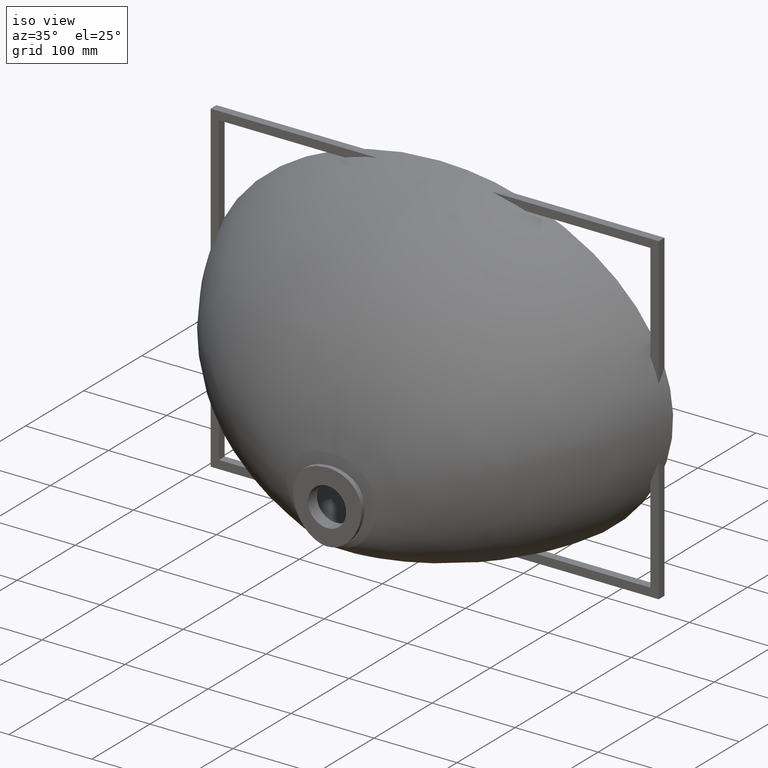
[diagram: clean part render]
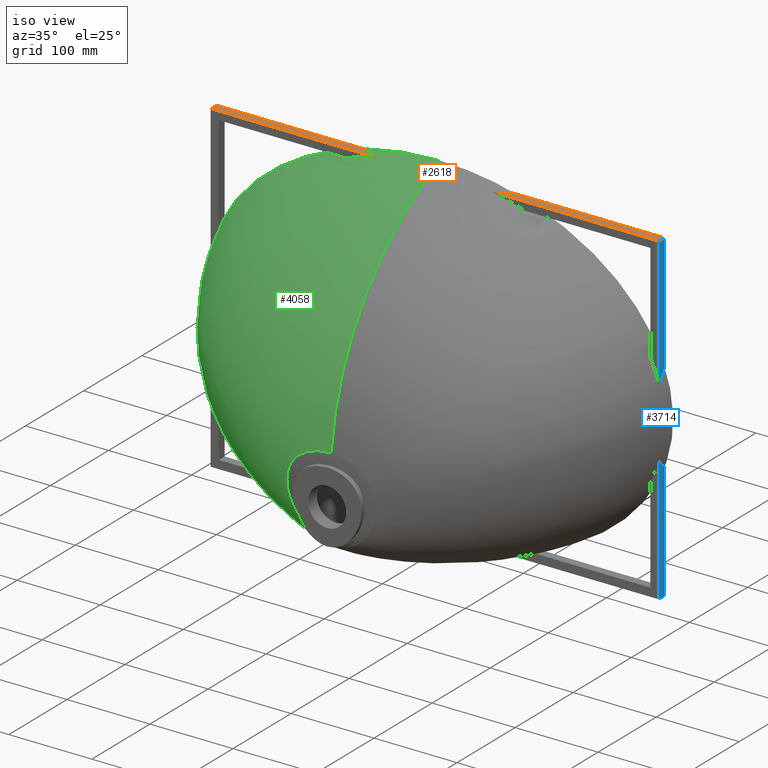
[diagram: same view with three faces highlighted in distinct colors, each labeled with its STEP entity id]
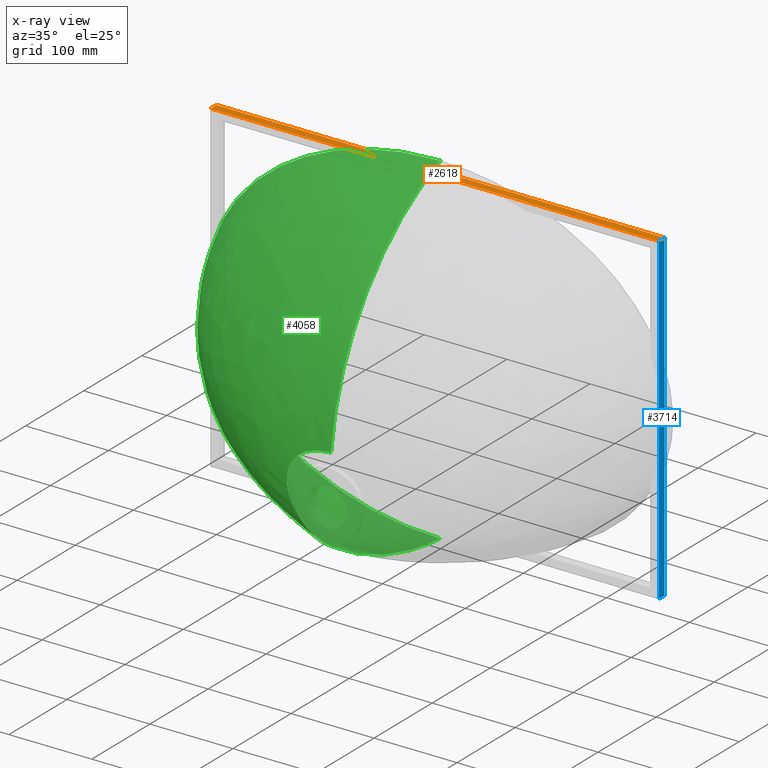
[diagram: x-ray of the same camera — body ghosted, the three highlighted faces saturated]
A machine part, iso view with three faces highlighted in distinct colors.
The next image is the same camera in x-ray (body ghosted, the three faces saturated) — at least one of them is partly hidden behind the body in this view.
Their STEP definitions:

[orange] entity #2618 — the highlighted planar face has unit normal (0, 0, 1).
#120 = VECTOR ( 'NONE', #4444, 1000.000000000000000 ) ;
#132 = VERTEX_POINT ( 'NONE', #2985 ) ;
#204 = LINE ( 'NONE', #4774, #1942 ) ;
#407 = VERTEX_POINT ( 'NONE', #4542 ) ;
#580 = VECTOR ( 'NONE', #3836, 1000.000000000000000 ) ;
#756 = LINE ( 'NONE', #4035, #580 ) ;
#886 = EDGE_CURVE ( 'NONE', #2417, #2832, #5292, .T. ) ;
#1715 = LINE ( 'NONE', #4623, #120 ) ;
#1937 = CARTESIAN_POINT ( 'NONE',  ( -270.0000000000000000, 0.0000000000000000000, 195.0000000000000000 ) ) ;
#1942 = VECTOR ( 'NONE', #4764, 1000.000000000000000 ) ;
#2270 = AXIS2_PLACEMENT_3D ( 'NONE', #2648, #2484, #2442 ) ;
#2417 = VERTEX_POINT ( 'NONE', #3705 ) ;
#2442 = DIRECTION ( 'NONE',  ( 1.000000000000000000, 0.0000000000000000000, -0.0000000000000000000 ) ) ;
#2484 = DIRECTION ( 'NONE',  ( 0.0000000000000000000, 0.0000000000000000000, 1.000000000000000000 ) ) ;
#2618 = ADVANCED_FACE ( 'NONE', ( #3174 ), #2763, .T. ) ;
#2648 = CARTESIAN_POINT ( 'NONE',  ( -270.0000000000000000, -10.00000000000000000, 195.0000000000000000 ) ) ;
#2701 = ORIENTED_EDGE ( 'NONE', *, *, #4942, .T. ) ;
#2763 = PLANE ( 'NONE',  #2270 ) ;
#2832 = VERTEX_POINT ( 'NONE', #1937 ) ;
#2985 = CARTESIAN_POINT ( 'NONE',  ( 270.0000000000000000, -10.00000000000000000, 195.0000000000000000 ) ) ;
#3174 = FACE_OUTER_BOUND ( 'NONE', #4048, .T. ) ;
#3669 = CARTESIAN_POINT ( 'NONE',  ( -270.0000000000000000, -10.00000000000000000, 195.0000000000000000 ) ) ;
#3705 = CARTESIAN_POINT ( 'NONE',  ( -270.0000000000000000, -10.00000000000000000, 195.0000000000000000 ) ) ;
#3836 = DIRECTION ( 'NONE',  ( 1.000000000000000000, 0.0000000000000000000, 0.0000000000000000000 ) ) ;
#3864 = DIRECTION ( 'NONE',  ( 0.0000000000000000000, 1.000000000000000000, 0.0000000000000000000 ) ) ;
#4035 = CARTESIAN_POINT ( 'NONE',  ( -270.0000000000000000, -10.00000000000000000, 195.0000000000000000 ) ) ;
#4048 = EDGE_LOOP ( 'NONE', ( #4213, #5318, #2701, #5008 ) ) ;
#4082 = EDGE_CURVE ( 'NONE', #2832, #407, #204, .T. ) ;
#4213 = ORIENTED_EDGE ( 'NONE', *, *, #4082, .F. ) ;
#4257 = EDGE_CURVE ( 'NONE', #132, #407, #1715, .T. ) ;
#4444 = DIRECTION ( 'NONE',  ( 0.0000000000000000000, 1.000000000000000000, 0.0000000000000000000 ) ) ;
#4542 = CARTESIAN_POINT ( 'NONE',  ( 270.0000000000000000, 0.0000000000000000000, 195.0000000000000000 ) ) ;
#4623 = CARTESIAN_POINT ( 'NONE',  ( 270.0000000000000000, -10.00000000000000000, 195.0000000000000000 ) ) ;
#4764 = DIRECTION ( 'NONE',  ( 1.000000000000000000, 0.0000000000000000000, 0.0000000000000000000 ) ) ;
#4774 = CARTESIAN_POINT ( 'NONE',  ( -270.0000000000000000, 0.0000000000000000000, 195.0000000000000000 ) ) ;
#4942 = EDGE_CURVE ( 'NONE', #2417, #132, #756, .T. ) ;
#5008 = ORIENTED_EDGE ( 'NONE', *, *, #4257, .T. ) ;
#5292 = LINE ( 'NONE', #3669, #5351 ) ;
#5318 = ORIENTED_EDGE ( 'NONE', *, *, #886, .F. ) ;
#5351 = VECTOR ( 'NONE', #3864, 1000.000000000000000 ) ;

[blue] entity #3714 — the highlighted planar face has unit normal (1, 0, 0).
#58 = ORIENTED_EDGE ( 'NONE', *, *, #5246, .T. ) ;
#120 = VECTOR ( 'NONE', #4444, 1000.000000000000000 ) ;
#132 = VERTEX_POINT ( 'NONE', #2985 ) ;
#407 = VERTEX_POINT ( 'NONE', #4542 ) ;
#430 = LINE ( 'NONE', #3521, #1142 ) ;
#519 = ORIENTED_EDGE ( 'NONE', *, *, #1467, .F. ) ;
#805 = VERTEX_POINT ( 'NONE', #4453 ) ;
#857 = CARTESIAN_POINT ( 'NONE',  ( 270.0000000000000000, 0.0000000000000000000, -195.0000000000000000 ) ) ;
#1142 = VECTOR ( 'NONE', #2764, 1000.000000000000000 ) ;
#1418 = VECTOR ( 'NONE', #2005, 1000.000000000000000 ) ;
#1467 = EDGE_CURVE ( 'NONE', #407, #3042, #5016, .T. ) ;
#1485 = ORIENTED_EDGE ( 'NONE', *, *, #4257, .F. ) ;
#1715 = LINE ( 'NONE', #4623, #120 ) ;
#1975 = CARTESIAN_POINT ( 'NONE',  ( 270.0000000000000000, 0.0000000000000000000, -195.0000000000000000 ) ) ;
#2005 = DIRECTION ( 'NONE',  ( -0.0000000000000000000, -0.0000000000000000000, -1.000000000000000000 ) ) ;
#2410 = EDGE_LOOP ( 'NONE', ( #519, #1485, #4757, #58 ) ) ;
#2690 = AXIS2_PLACEMENT_3D ( 'NONE', #4007, #3998, #3992 ) ;
#2764 = DIRECTION ( 'NONE',  ( 0.0000000000000000000, 1.000000000000000000, 0.0000000000000000000 ) ) ;
#2985 = CARTESIAN_POINT ( 'NONE',  ( 270.0000000000000000, -10.00000000000000000, 195.0000000000000000 ) ) ;
#3042 = VERTEX_POINT ( 'NONE', #857 ) ;
#3447 = FACE_OUTER_BOUND ( 'NONE', #2410, .T. ) ;
#3521 = CARTESIAN_POINT ( 'NONE',  ( 270.0000000000000000, -10.00000000000000000, -195.0000000000000000 ) ) ;
#3587 = LINE ( 'NONE', #4040, #3602 ) ;
#3602 = VECTOR ( 'NONE', #4029, 1000.000000000000000 ) ;
#3670 = EDGE_CURVE ( 'NONE', #132, #805, #3587, .T. ) ;
#3714 = ADVANCED_FACE ( 'NONE', ( #3447 ), #4017, .T. ) ;
#3992 = DIRECTION ( 'NONE',  ( 0.0000000000000000000, 0.0000000000000000000, -1.000000000000000000 ) ) ;
#3998 = DIRECTION ( 'NONE',  ( 1.000000000000000000, 0.0000000000000000000, 0.0000000000000000000 ) ) ;
#4007 = CARTESIAN_POINT ( 'NONE',  ( 270.0000000000000000, -10.00000000000000000, -195.0000000000000000 ) ) ;
#4017 = PLANE ( 'NONE',  #2690 ) ;
#4029 = DIRECTION ( 'NONE',  ( -0.0000000000000000000, -0.0000000000000000000, -1.000000000000000000 ) ) ;
#4040 = CARTESIAN_POINT ( 'NONE',  ( 270.0000000000000000, -10.00000000000000000, -195.0000000000000000 ) ) ;
#4257 = EDGE_CURVE ( 'NONE', #132, #407, #1715, .T. ) ;
#4444 = DIRECTION ( 'NONE',  ( 0.0000000000000000000, 1.000000000000000000, 0.0000000000000000000 ) ) ;
#4453 = CARTESIAN_POINT ( 'NONE',  ( 270.0000000000000000, -10.00000000000000000, -195.0000000000000000 ) ) ;
#4542 = CARTESIAN_POINT ( 'NONE',  ( 270.0000000000000000, 0.0000000000000000000, 195.0000000000000000 ) ) ;
#4623 = CARTESIAN_POINT ( 'NONE',  ( 270.0000000000000000, -10.00000000000000000, 195.0000000000000000 ) ) ;
#4757 = ORIENTED_EDGE ( 'NONE', *, *, #3670, .T. ) ;
#5016 = LINE ( 'NONE', #1975, #1418 ) ;
#5246 = EDGE_CURVE ( 'NONE', #805, #3042, #430, .T. ) ;

[green] entity #4058 — the highlighted face is a freeform B-spline surface patch.
#6 = CARTESIAN_POINT ( 'NONE',  ( -2.819836364082118700, -8.076848715707519900, -204.4885747663022400 ) ) ;
#16 = CARTESIAN_POINT ( 'NONE',  ( -7.049391303477163400, -8.079053201208497000, -204.4385659359441500 ) ) ;
#23 = ORIENTED_EDGE ( 'NONE', *, *, #742, .F. ) ;
#25 = CARTESIAN_POINT ( 'NONE',  ( -12.68457138517145000, -8.086244967146237500, -204.2727465883569100 ) ) ;
#32 = CARTESIAN_POINT ( 'NONE',  ( -38.02446130611053800, -8.131130491039220600, -203.2304519336760500 ) ) ;
#34 = CARTESIAN_POINT ( 'NONE',  ( -75.72623858138315700, -8.355128208225753600, -197.9084060898759400 ) ) ;
#39 = CARTESIAN_POINT ( 'NONE',  ( -122.9788504234550100, -8.875606680470408300, -183.6948354204063500 ) ) ;
#51 = CARTESIAN_POINT ( 'NONE',  ( -160.0619316784532200, -9.412397973965250100, -167.3209351537979000 ) ) ;
#57 = CARTESIAN_POINT ( 'NONE',  ( -194.0645779643863000, -10.01311872806122100, -146.5396875830586500 ) ) ;
#66 = CARTESIAN_POINT ( 'NONE',  ( -223.7418789852179400, -10.63863917006891000, -121.5390579361853400 ) ) ;
#72 = CARTESIAN_POINT ( 'NONE',  ( -248.0373955814802700, -11.24982952729866700, -92.72743180487577800 ) ) ;
#75 = CARTESIAN_POINT ( 'NONE',  ( -262.8153830206808300, -11.71460494376721500, -65.88824475207431400 ) ) ;
#86 = CARTESIAN_POINT ( 'NONE',  ( -272.8364404119650400, -12.12151184138764200, -36.83959086892875900 ) ) ;
#89 = CARTESIAN_POINT ( 'NONE',  ( -276.2670969542086300, -12.36072026936639300, -14.62419182524907800 ) ) ;
#93 = CARTESIAN_POINT ( 'NONE',  ( -275.8353086337853000, -12.51456407646480300, 5.076555181635733900 ) ) ;
#103 = CARTESIAN_POINT ( 'NONE',  ( -273.9981372063608700, -12.64814960764455300, 25.18917699331901600 ) ) ;
#108 = CARTESIAN_POINT ( 'NONE',  ( -265.9250299043407600, -12.77648685031261700, 56.62237388140915300 ) ) ;
#111 = CARTESIAN_POINT ( 'NONE',  ( -247.0078237255459300, -12.81904217140639800, 89.19019095775001900 ) ) ;
#119 = CARTESIAN_POINT ( 'NONE',  ( -223.0447760122071900, -12.82395357403380100, 117.4512797947708000 ) ) ;
#129 = CARTESIAN_POINT ( 'NONE',  ( -204.4214729398089200, -12.81251039669023800, 134.5287374991228500 ) ) ;
#135 = CARTESIAN_POINT ( 'NONE',  ( -173.5453526692984400, -12.78434089994671300, 156.2087015165661500 ) ) ;
#138 = CARTESIAN_POINT ( 'NONE',  ( 8.687847533397907700E-011, -182.5850158452587100, -144.6992554022036200 ) ) ;
#147 = CARTESIAN_POINT ( 'NONE',  ( -143.2455781920379500, -12.75211611180374900, 172.4800639677459900 ) ) ;
#152 = CARTESIAN_POINT ( 'NONE',  ( -104.5325143167278000, -12.71294901025505700, 186.7164473836666600 ) ) ;
#155 = CARTESIAN_POINT ( 'NONE',  ( -75.66200288336303000, -12.68796444184368300, 193.9634902803269400 ) ) ;
#162 = CARTESIAN_POINT ( 'NONE',  ( -52.21895463348325000, -12.67210591162217900, 197.9859071356809500 ) ) ;
#168 = CARTESIAN_POINT ( 'NONE',  ( -34.65182842360181300, -12.66286006743254900, 200.1197963567129800 ) ) ;
#173 = CARTESIAN_POINT ( 'NONE',  ( -17.14554454967651900, -12.65684576794211800, 201.3831440458204400 ) ) ;
#188 = CARTESIAN_POINT ( 'NONE',  ( 3.518293838693007100E-009, -12.65464650437358100, 201.8061611176716500 ) ) ;
#193 = CARTESIAN_POINT ( 'NONE',  ( 17.14554455589452400, -12.65684576794962300, 201.3831440464637100 ) ) ;
#202 = CARTESIAN_POINT ( 'NONE',  ( 34.65182842737017700, -12.66286006744777000, 200.1197963582074000 ) ) ;
#209 = CARTESIAN_POINT ( 'NONE',  ( 52.21895463319971500, -12.67210591164552500, 197.9859071384554200 ) ) ;
#212 = CARTESIAN_POINT ( 'NONE',  ( 75.66200287577973400, -12.68796444187868700, 193.9634902856580000 ) ) ;
#223 = CARTESIAN_POINT ( 'NONE',  ( 104.5325142970981000, -12.71294901030668900, 186.7164473942650000 ) ) ;
#226 = CARTESIAN_POINT ( 'NONE',  ( 143.2455781531759000, -12.75211611188441400, 172.4800639907834100 ) ) ;
#231 = CARTESIAN_POINT ( 'NONE',  ( 173.5453526161465200, -12.78434090006048300, 156.2087015552658300 ) ) ;
#241 = CARTESIAN_POINT ( 'NONE',  ( 204.4214728780552500, -12.81251039685319300, 134.5287375575188100 ) ) ;
#244 = CARTESIAN_POINT ( 'NONE',  ( 223.0447759499570000, -12.82395357424013800, 117.4512798667707300 ) ) ;
#251 = CARTESIAN_POINT ( 'NONE',  ( 247.0078236708565700, -12.81904217169853200, 89.19019104677296600 ) ) ;
#260 = CARTESIAN_POINT ( 'NONE',  ( 265.9250298664561000, -12.77648685072594300, 56.62237398358112700 ) ) ;
#263 = CARTESIAN_POINT ( 'NONE',  ( 273.9981371976636500, -12.64814960808190000, 25.18917706044052500 ) ) ;
#268 = CARTESIAN_POINT ( 'NONE',  ( 275.8353086300193100, -12.51456407694363900, 5.076555248016908300 ) ) ;
#277 = CARTESIAN_POINT ( 'NONE',  ( 276.2670969555371100, -12.36072026988523300, -14.62419176093228400 ) ) ;
#278 = CARTESIAN_POINT ( 'NONE',  ( 272.8364404292823300, -12.12151184236387500, -36.83959077928555100 ) ) ;
#288 = CARTESIAN_POINT ( 'NONE',  ( 262.8153830499868500, -11.71460494485185000, -65.88824467281028800 ) ) ;
#290 = CARTESIAN_POINT ( 'NONE',  ( 248.0373956195719000, -11.24982952843542000, -92.72743173633536200 ) ) ;
#292 = CARTESIAN_POINT ( 'NONE',  ( 223.7418790288108700, -10.63863917118948300, -121.5390578808626700 ) ) ;
#303 = CARTESIAN_POINT ( 'NONE',  ( 194.0645780085799000, -10.01311872909810000, -146.5396875413147500 ) ) ;
#306 = CARTESIAN_POINT ( 'NONE',  ( 160.0619317187478400, -9.412397974862258800, -167.3209351244944400 ) ) ;
#311 = CARTESIAN_POINT ( 'NONE',  ( 122.9788504563753000, -8.875606681182546300, -183.6948354019711500 ) ) ;
#313 = CARTESIAN_POINT ( 'NONE',  ( -52.02712379390499800, -188.3062080218166700, -71.87774143196122600 ) ) ;
#323 = CARTESIAN_POINT ( 'NONE',  ( 75.72623860313005700, -8.355128208675420600, -197.9084060818014200 ) ) ;
#325 = CARTESIAN_POINT ( 'NONE',  ( 38.02446131139618000, -8.131130491265871300, -203.2304519307160400 ) ) ;
#340 = CARTESIAN_POINT ( 'NONE',  ( 12.68457138680452400, -8.086244967221894300, -204.2727465874787100 ) ) ;
#343 = CARTESIAN_POINT ( 'NONE',  ( 7.049391304507674100, -8.079053201250557600, -204.4385659354936100 ) ) ;
#344 = CARTESIAN_POINT ( 'NONE',  ( -1.040561905418569300, -188.4174479950032200, -39.39243568516077700 ) ) ;
#353 = CARTESIAN_POINT ( 'NONE',  ( 2.819836364915961000, -8.076848715724343800, -204.4885747661327900 ) ) ;
#355 = CARTESIAN_POINT ( 'NONE',  ( 4.168961183215191800E-010, -8.076848715715932800, -204.4885747662175100 ) ) ;
#358 = CARTESIAN_POINT ( 'NONE',  ( 3.881823248258475800E-010, -24.19537894425058500, -202.8587709240851800 ) ) ;
#368 = CARTESIAN_POINT ( 'NONE',  ( -2.733805549506528500, -24.19537894422652600, -202.8587709241807300 ) ) ;
#370 = CARTESIAN_POINT ( 'NONE',  ( -6.834332635137286600, -24.20168263699243700, -202.8095979812205500 ) ) ;
#374 = CARTESIAN_POINT ( 'NONE',  ( -12.29756658378481800, -24.22224743787383600, -202.6465961950933100 ) ) ;
#381 = CARTESIAN_POINT ( 'NONE',  ( -36.86405332546230100, -24.35059741080494800, -201.6221366070202000 ) ) ;
#388 = CARTESIAN_POINT ( 'NONE',  ( -73.41128257484692200, -24.99112047615244600, -196.3931809155402300 ) ) ;
#391 = CARTESIAN_POINT ( 'NONE',  ( -119.1696923158504000, -26.47947074688198700, -182.4585196103085100 ) ) ;
#396 = CARTESIAN_POINT ( 'NONE',  ( -155.0081935177820800, -28.01450061149255800, -166.4369300169625500 ) ) ;
#397 = CARTESIAN_POINT ( 'NONE',  ( -49.64686594521501200, -188.4819152514454300, -65.07688396960097100 ) ) ;
#403 = CARTESIAN_POINT ( 'NONE',  ( -187.7793766365974500, -29.73239134581723100, -146.1402214072614900 ) ) ;
#412 = CARTESIAN_POINT ( 'NONE',  ( -216.2843949067401800, -31.52126584723487900, -121.7621829222718500 ) ) ;
#421 = CARTESIAN_POINT ( 'NONE',  ( -239.4970200657696800, -33.26924701312395900, -93.70862002136421200 ) ) ;
#428 = CARTESIAN_POINT ( 'NONE',  ( -253.4786642486919800, -34.59858928623988600, -67.61484342137133300 ) ) ;
#435 = CARTESIAN_POINT ( 'NONE',  ( -262.8009086693758100, -35.76252684637376700, -39.42320605497993600 ) ) ;
#436 = CARTESIAN_POINT ( 'NONE',  ( -265.8199185309400700, -36.44687155792043100, -17.90385269031924400 ) ) ;
#438 = CARTESIAN_POINT ( 'NONE',  ( -8.308430927603469100, -182.6520538276857900, -144.1400467093960500 ) ) ;
#445 = CARTESIAN_POINT ( 'NONE',  ( -265.1417188640651800, -36.88710800569313600, 1.151533687016328000 ) ) ;
#452 = CARTESIAN_POINT ( 'NONE',  ( -16.52252222705959300, -182.9287748130280700, -141.8052248694354800 ) ) ;
#455 = CARTESIAN_POINT ( 'NONE',  ( -263.1042759024210800, -37.26943319107053300, 20.59166995293266200 ) ) ;
#465 = CARTESIAN_POINT ( 'NONE',  ( -254.9282568517588500, -37.63696858409086600, 50.90962688921396100 ) ) ;
#475 = CARTESIAN_POINT ( 'NONE',  ( -236.4300374062043200, -37.75924857553993500, 82.22013022522914100 ) ) ;
#477 = CARTESIAN_POINT ( 'NONE',  ( -0.6162999248789742300, -182.5850158452481700, -144.6992554022425600 ) ) ;
#478 = CARTESIAN_POINT ( 'NONE',  ( -213.2503304510206300, -37.77380477593330700, 109.3373355215840500 ) ) ;
#481 = CARTESIAN_POINT ( 'NONE',  ( -195.3313650064183400, -37.74139139687616800, 125.7001145484600800 ) ) ;
#482 = CARTESIAN_POINT ( 'NONE',  ( -26.54727550322527200, -183.5729490930193900, -135.9943730621021400 ) ) ;
#490 = CARTESIAN_POINT ( 'NONE',  ( -1.540761438606464500, -182.5877376857126800, -144.6767715989717000 ) ) ;
#492 = CARTESIAN_POINT ( 'NONE',  ( -165.7348085076484400, -37.66123900531142300, 146.4660793372417200 ) ) ;
#497 = CARTESIAN_POINT ( 'NONE',  ( -136.7668575551670600, -37.56940003039471100, 162.0526587249096900 ) ) ;
#499 = CARTESIAN_POINT ( 'NONE',  ( -99.80255374980264100, -37.45769039211917600, 175.7120323893709600 ) ) ;
#509 = CARTESIAN_POINT ( 'NONE',  ( -72.24776679284627800, -37.38640481434722300, 182.6792697876097700 ) ) ;
#513 = CARTESIAN_POINT ( 'NONE',  ( -40.78079002103891100, -184.9842976373334400, -121.9998071449916100 ) ) ;
#516 = CARTESIAN_POINT ( 'NONE',  ( -49.87326576079902900, -37.34114963476723400, 186.5526883205232000 ) ) ;
#521 = CARTESIAN_POINT ( 'NONE',  ( -33.10247293116731300, -37.31476215891104400, 188.6103465489799800 ) ) ;
#522 = CARTESIAN_POINT ( 'NONE',  ( -34.12285988275811400, -184.2382968211148900, -129.6439658228810600 ) ) ;
#529 = CARTESIAN_POINT ( 'NONE',  ( -16.38527011868824300, -37.29759585939366000, 189.8304889883193000 ) ) ;
#532 = CARTESIAN_POINT ( 'NONE',  ( -50.50107118331675300, -186.5267275742341200, -103.7755085574045900 ) ) ;
#535 = CARTESIAN_POINT ( 'NONE',  ( 3.251806699327571600E-009, -37.29131800372506000, 190.2394366199420100 ) ) ;
#541 = CARTESIAN_POINT ( 'NONE',  ( 16.38527012442520100, -37.29759585941523900, 189.8304889891285000 ) ) ;
#542 = CARTESIAN_POINT ( 'NONE',  ( -46.30887035747033300, -185.7630688016991800, -113.2672718390743100 ) ) ;
#547 = CARTESIAN_POINT ( 'NONE',  ( -52.68013176025102200, -187.1106139415063900, -95.54721671447006800 ) ) ;
#549 = CARTESIAN_POINT ( 'NONE',  ( 33.10247293461129900, -37.31476215895480700, 188.6103465507903800 ) ) ;
#554 = CARTESIAN_POINT ( 'NONE',  ( 49.87326576045256100, -37.34114963483435200, 186.5526883237309300 ) ) ;
#558 = CARTESIAN_POINT ( 'NONE',  ( 72.24776678567270900, -37.38640481444782200, 182.6792697934656600 ) ) ;
#563 = CARTESIAN_POINT ( 'NONE',  ( -53.73878124898718100, -187.6252016389131800, -87.26462082994406400 ) ) ;
#564 = CARTESIAN_POINT ( 'NONE',  ( 99.80255373136270700, -37.45769039226751600, 175.7120324004506800 ) ) ;
#569 = CARTESIAN_POINT ( 'NONE',  ( 136.7668575187253700, -37.56940003062633300, 162.0526587479757300 ) ) ;
#574 = CARTESIAN_POINT ( 'NONE',  ( 165.7348084577816100, -37.66123900563791700, 146.4660793751886300 ) ) ;
#575 = CARTESIAN_POINT ( 'NONE',  ( -9.450795167799753900, -188.4353232490105100, -39.99380496551201200 ) ) ;
#589 = CARTESIAN_POINT ( 'NONE',  ( 195.3313649483505100, -37.74139139734351300, 125.7001146050589300 ) ) ;
#593 = CARTESIAN_POINT ( 'NONE',  ( 213.2503303923235500, -37.77380477652479100, 109.3373355910559600 ) ) ;
#601 = CARTESIAN_POINT ( 'NONE',  ( 236.4300373542636700, -37.75924857637694700, 82.22013031086589800 ) ) ;
#610 = CARTESIAN_POINT ( 'NONE',  ( 254.9282568151608400, -37.63696858527458700, 50.90962698741295600 ) ) ;
#615 = CARTESIAN_POINT ( 'NONE',  ( 263.1042758936114900, -37.26943319232216800, 20.59167001752138400 ) ) ;
#627 = CARTESIAN_POINT ( 'NONE',  ( 265.1417188596256600, -36.88710800706342500, 1.151533750957008900 ) ) ;
#631 = CARTESIAN_POINT ( 'NONE',  ( 265.8199185310389800, -36.44687155940513900, -17.90385262826154300 ) ) ;
#637 = CARTESIAN_POINT ( 'NONE',  ( 262.8009086842042200, -35.76252684916678200, -39.42320596817815200 ) ) ;
#643 = CARTESIAN_POINT ( 'NONE',  ( 253.4786642748401300, -34.59858928934266900, -67.61484334431759200 ) ) ;
#646 = CARTESIAN_POINT ( 'NONE',  ( 239.4970201002751400, -33.26924701637563000, -93.70861995445706300 ) ) ;
#652 = CARTESIAN_POINT ( 'NONE',  ( 216.2843949465765300, -31.52126585044010600, -121.7621828679630100 ) ) ;
#661 = CARTESIAN_POINT ( 'NONE',  ( 187.7793766771966100, -29.73239134878300400, -146.1402213659705500 ) ) ;
#665 = CARTESIAN_POINT ( 'NONE',  ( 155.0081935549384900, -28.01450061405816800, -166.4369299876854600 ) ) ;
#675 = CARTESIAN_POINT ( 'NONE',  ( 119.1696923463024800, -26.47947074891877900, -182.4585195916226000 ) ) ;
#676 = B_SPLINE_CURVE_WITH_KNOTS ( 'NONE', 3,
 ( #3947, #3963, #3918, #3905, #3896, #3885, #3875, #3863, #3852, #3843, #3820 ),
 .UNSPECIFIED., .F., .F.,
 ( 4, 1, 1, 1, 1, 1, 1, 1, 4 ),
 ( 0.1114041574980329900, 0.2146817928574745700, 0.3179594282169160300, 0.4212370635763577600, 0.5245146989357991600, 0.6277923342952408400, 0.7310699696546825200, 0.8343476050141239700, 0.9376252403735656500 ),
 .UNSPECIFIED. ) ;
#679 = CARTESIAN_POINT ( 'NONE',  ( 73.41128259503636900, -24.99112047743864900, -196.3931809071020500 ) ) ;
#692 = CARTESIAN_POINT ( 'NONE',  ( 36.86405333037266300, -24.35059741145322900, -201.6221366038099100 ) ) ;
#695 = CARTESIAN_POINT ( 'NONE',  ( 12.29756658530350000, -24.22224743809023600, -202.6465961941249000 ) ) ;
#707 = CARTESIAN_POINT ( 'NONE',  ( 6.834332636096380800, -24.20168263711273900, -202.8095979807175700 ) ) ;
#709 = CARTESIAN_POINT ( 'NONE',  ( 2.733805550282942100, -24.19537894427464400, -202.8587709239896500 ) ) ;
#711 = CARTESIAN_POINT ( 'NONE',  ( 3.881823248258475800E-010, -24.19537894425058500, -202.8587709240851800 ) ) ;
#722 = CARTESIAN_POINT ( 'NONE',  ( 3.451468711529459600E-010, -48.17378322770623800, -198.9119701051763200 ) ) ;
#725 = CARTESIAN_POINT ( 'NONE',  ( -2.550257111995595200, -48.17378322766332800, -198.9119701052810900 ) ) ;
#730 = CARTESIAN_POINT ( 'NONE',  ( -6.375489093508526200, -48.18502319256293700, -198.8646762564846700 ) ) ;
#742 = EDGE_CURVE ( 'NONE', #3505, #3220, #2462, .T. ) ;
#744 = CARTESIAN_POINT ( 'NONE',  ( -11.47188972311580800, -48.22169193710866600, -198.7079893246100500 ) ) ;
#746 = CARTESIAN_POINT ( 'NONE',  ( -34.38856456149856900, -48.45055095373054100, -197.7234515773781100 ) ) ;
#750 = CARTESIAN_POINT ( 'NONE',  ( -68.47631992507517400, -49.59266469690533100, -192.7020466903112800 ) ) ;
#763 = CARTESIAN_POINT ( 'NONE',  ( -111.0936672755711400, -52.24662946176288600, -179.3771999911849900 ) ) ;
#765 = CARTESIAN_POINT ( 'NONE',  ( -144.3832329011259800, -54.98390932590503900, -164.1093712124700500 ) ) ;
#768 = CARTESIAN_POINT ( 'NONE',  ( -174.7154675977946000, -58.04738043803902100, -144.8315939753002800 ) ) ;
#775 = CARTESIAN_POINT ( 'NONE',  ( -200.9831978520705000, -61.23759148606366400, -121.7474687449701300 ) ) ;
#782 = CARTESIAN_POINT ( 'NONE',  ( -222.2280897033836900, -64.35509115787708400, -95.26000623698266200 ) ) ;
#785 = CARTESIAN_POINT ( 'NONE',  ( -234.8607602872463100, -66.72620531079425600, -70.70022868072248900 ) ) ;
#797 = CARTESIAN_POINT ( 'NONE',  ( -243.0932163190284700, -68.80256071345250700, -44.25445566943832900 ) ) ;
#798 = CARTESIAN_POINT ( 'NONE',  ( -245.5504204560772100, -70.02361420658832000, -24.13792408246027000 ) ) ;
#801 = CARTESIAN_POINT ( 'NONE',  ( -244.6180276136052800, -70.80938090362832300, -6.376854513146421200 ) ) ;
#803 = B_SPLINE_CURVE_WITH_KNOTS ( 'NONE', 3,
 ( #3423, #3563, #3393, #3376, #3372, #3360, #3273, #3253, #3234, #3215, #3196, #3171, #3083, #3063, #3059, #3039, #3034, #3019, #3013, #3000, #2994, #2984, #2978, #2964, #2960, #2943, #2931, #2925, #2907 ),
 .UNSPECIFIED., .F., .F.,
 ( 4, 1, 1, 1, 1, 1, 1, 1, 1, 1, 1, 1, 1, 1, 1, 1, 1, 1, 1, 1, 1, 1, 1, 1, 1, 1, 4 ),
 ( 0.5000000000000000000, 0.5078125000000000000, 0.5156250000000000000, 0.5234375000000000000, 0.5312500000000000000, 0.5468750000000000000, 0.5625000000000000000, 0.5859375000000000000, 0.5937500000000000000, 0.6171875000000000000, 0.6250000000000000000, 0.6562500000000000000, 0.6875000000000000000, 0.6945142946655007400, 0.7031250000000000000, 0.7343750000000000000, 0.7500000000000000000, 0.7812500000000000000, 0.8125000000000000000, 0.8437500000000000000, 0.8750000000000000000, 0.9062500000000000000, 0.9375000000000000000, 0.9875000000000000400, 0.9906249999999999800, 0.9937500000000000200, 1.000000000000000000 ),
 .UNSPECIFIED. ) ;
#807 = CARTESIAN_POINT ( 'NONE',  ( -242.4231901663679000, -71.49192906368914200, 11.71914763789709500 ) ) ;
#810 = CARTESIAN_POINT ( 'NONE',  ( -234.4014684598613200, -72.14864012340366600, 39.83956705621739000 ) ) ;
#813 = CARTESIAN_POINT ( 'NONE',  ( -216.9769088490731100, -72.36813219459058600, 68.73158190243881900 ) ) ;
#828 = CARTESIAN_POINT ( 'NONE',  ( -195.4270263462505600, -72.39534425697753800, 93.68263456840023200 ) ) ;
#833 = CARTESIAN_POINT ( 'NONE',  ( -178.8765278505527200, -72.33830538871940500, 108.7064557809902500 ) ) ;
#836 = CARTESIAN_POINT ( 'NONE',  ( -151.6670881669700200, -72.19636429442736900, 127.7606427541830800 ) ) ;
#848 = CARTESIAN_POINT ( 'NONE',  ( -125.1221971311715000, -72.03336285795657500, 142.0597873676857400 ) ) ;
#855 = CARTESIAN_POINT ( 'NONE',  ( -91.30310087138596500, -71.83488331936089800, 154.6122072230157000 ) ) ;
#865 = CARTESIAN_POINT ( 'NONE',  ( -66.10588681789357700, -71.70816215187049600, 161.0288290006447500 ) ) ;
#871 = CARTESIAN_POINT ( 'NONE',  ( -45.64582791331114500, -71.62769468861614500, 164.6025582507140500 ) ) ;
#882 = CARTESIAN_POINT ( 'NONE',  ( -30.30491326070314500, -71.58076870450295800, 166.5038943374866300 ) ) ;
#885 = CARTESIAN_POINT ( 'NONE',  ( -15.00781823444930800, -71.55023721167596300, 167.6333225928852600 ) ) ;
#890 = CARTESIAN_POINT ( 'NONE',  ( 2.851328324461270700E-009, -71.53907008809370900, 168.0122302453762300 ) ) ;
#899 = CARTESIAN_POINT ( 'NONE',  ( 15.00781823946718200, -71.55023721171477300, 167.6333225938319300 ) ) ;
#903 = CARTESIAN_POINT ( 'NONE',  ( 30.30491326367433700, -71.58076870458162900, 166.5038943395486800 ) ) ;
#908 = CARTESIAN_POINT ( 'NONE',  ( 45.64582791290183600, -71.62769468873676700, 164.6025582542393700 ) ) ;
#911 = CARTESIAN_POINT ( 'NONE',  ( 66.10588681139769600, -71.70816215205125800, 161.0288290068105800 ) ) ;
#923 = CARTESIAN_POINT ( 'NONE',  ( 91.30310085484600800, -71.83488331962726600, 154.6122072341630400 ) ) ;
#929 = CARTESIAN_POINT ( 'NONE',  ( 125.1221970985662600, -72.03336285837207200, 142.0597873899044400 ) ) ;
#933 = CARTESIAN_POINT ( 'NONE',  ( 151.6670881223261600, -72.19636429501257200, 127.7606427899258300 ) ) ;
#943 = CARTESIAN_POINT ( 'NONE',  ( 178.8765277984140000, -72.33830538955628200, 108.7064558336250000 ) ) ;
#951 = CARTESIAN_POINT ( 'NONE',  ( 195.4270262933569900, -72.39534425803609000, 93.68263463269077800 ) ) ;
#954 = CARTESIAN_POINT ( 'NONE',  ( 216.9769088018329900, -72.36813219608733000, 68.73158198144815900 ) ) ;
#962 = CARTESIAN_POINT ( 'NONE',  ( 234.4014684258622500, -72.14864012551890900, 39.83956714678186700 ) ) ;
#967 = CARTESIAN_POINT ( 'NONE',  ( 242.4231901577285000, -71.49192906592387000, 11.71914769758039800 ) ) ;
#969 = CARTESIAN_POINT ( 'NONE',  ( 244.6180276085957500, -70.80938090607460800, -6.376854453975148800 ) ) ;
#979 = CARTESIAN_POINT ( 'NONE',  ( 245.5504204548657000, -70.02361420923861600, -24.13792402489888600 ) ) ;
#989 = CARTESIAN_POINT ( 'NONE',  ( 243.0932163306848700, -68.80256071843648200, -44.25445558844909000 ) ) ;
#992 = CARTESIAN_POINT ( 'NONE',  ( 234.8607603091445500, -66.72620531633016600, -70.70022860843086200 ) ) ;
#1004 = CARTESIAN_POINT ( 'NONE',  ( 222.2280897329210100, -64.35509116367809700, -95.26000617385562900 ) ) ;
#1007 = CARTESIAN_POINT ( 'NONE',  ( 200.9831978865933600, -61.23759149178141600, -121.7474686933549600 ) ) ;
#1012 = CARTESIAN_POINT ( 'NONE',  ( 174.7154676332383200, -58.04738044332938800, -144.8315939356892800 ) ) ;
#1020 = CARTESIAN_POINT ( 'NONE',  ( 144.3832329337340900, -54.98390933048144500, -164.1093711840480300 ) ) ;
#1026 = CARTESIAN_POINT ( 'NONE',  ( 111.0936673024140500, -52.24662946539594100, -179.3771999727434500 ) ) ;
#1036 = CARTESIAN_POINT ( 'NONE',  ( 68.47631994295990400, -49.59266469919954500, -192.7020466817049300 ) ) ;
#1039 = CARTESIAN_POINT ( 'NONE',  ( 34.38856456585213600, -48.45055095488688600, -197.7234515739814900 ) ) ;
#1043 = CARTESIAN_POINT ( 'NONE',  ( 11.47188972446401700, -48.22169193749465400, -198.7079893235693900 ) ) ;
#1048 = CARTESIAN_POINT ( 'NONE',  ( 6.375489094360814200, -48.18502319277751400, -198.8646762559380600 ) ) ;
#1054 = CARTESIAN_POINT ( 'NONE',  ( 2.550257112685933700, -48.17378322774915500, -198.9119701050715900 ) ) ;
#1057 = CARTESIAN_POINT ( 'NONE',  ( 3.451468711529459600E-010, -48.17378322770623800, -198.9119701051763200 ) ) ;
#1063 = CARTESIAN_POINT ( 'NONE',  ( 3.020925523622430800E-010, -71.85890700116097200, -193.4753613174022700 ) ) ;
#1071 = CARTESIAN_POINT ( 'NONE',  ( -2.316772447975428100, -71.85890700110482500, -193.4753613175096500 ) ) ;
#1074 = CARTESIAN_POINT ( 'NONE',  ( -5.791804985606543900, -71.87361128189735400, -193.4305789254488000 ) ) ;
#1087 = CARTESIAN_POINT ( 'NONE',  ( -10.42158258899744500, -71.92158199888334000, -193.2823142801562700 ) ) ;
#1089 = CARTESIAN_POINT ( 'NONE',  ( -31.23976419808459300, -72.22097992437149100, -192.3509740015544500 ) ) ;
#1100 = CARTESIAN_POINT ( 'NONE',  ( -62.20135374381381900, -73.71512253411707100, -187.6053752139567300 ) ) ;
#1104 = CARTESIAN_POINT ( 'NONE',  ( -100.8532578850786600, -77.18720955425412500, -175.0796532584917600 ) ) ;
#1117 = CARTESIAN_POINT ( 'NONE',  ( -130.9689633007063800, -80.76837912380894100, -160.7862478031681500 ) ) ;
#1119 = CARTESIAN_POINT ( 'NONE',  ( -158.3200707844185600, -84.77642429005744900, -142.8108577756269700 ) ) ;
#1131 = CARTESIAN_POINT ( 'NONE',  ( -181.9117665354465600, -88.95045693025443300, -121.3667842329307400 ) ) ;
#1133 = CARTESIAN_POINT ( 'NONE',  ( -200.8742973557790500, -93.02958892165362700, -96.85413241425489200 ) ) ;
#1136 = CARTESIAN_POINT ( 'NONE',  ( -212.0164755918655100, -96.13237493819991600, -74.22099675785115400 ) ) ;
#1151 = CARTESIAN_POINT ( 'NONE',  ( -219.1210567894623900, -98.84973789581539400, -49.95269995685858800 ) ) ;
#1152 = CARTESIAN_POINT ( 'NONE',  ( -221.0674561546295300, -100.4480190747743200, -31.57318010715669100 ) ) ;
#1156 = CARTESIAN_POINT ( 'NONE',  ( -219.9866242082817400, -101.4768268681784300, -15.40858477648365400 ) ) ;
#1170 = CARTESIAN_POINT ( 'NONE',  ( -217.7654240193074600, -102.3706478037806100, 1.033356605530421700 ) ) ;
#1171 = CARTESIAN_POINT ( 'NONE',  ( -210.1808058425470400, -103.2312464886583600, 26.47366940116598500 ) ) ;
#1175 = CARTESIAN_POINT ( 'NONE',  ( -194.2377903298617500, -103.5199666311921200, 52.45986422984532300 ) ) ;
#1187 = CARTESIAN_POINT ( 'NONE',  ( -174.7344430581066800, -103.5569265883843000, 74.83351674540945500 ) ) ;
#1188 = CARTESIAN_POINT ( 'NONE',  ( -159.8382371491323100, -103.4831264875589100, 88.27500640298482900 ) ) ;
#1192 = CARTESIAN_POINT ( 'NONE',  ( -135.4444973429429800, -103.2984942875670800, 105.3070999690459900 ) ) ;
#1195 = CARTESIAN_POINT ( 'NONE',  ( -111.7123587672781500, -103.0860700785327300, 118.0821142267540900 ) ) ;
#1204 = CARTESIAN_POINT ( 'NONE',  ( -81.51680066147325500, -102.8271818358868300, 129.3082604887221400 ) ) ;
#1212 = CARTESIAN_POINT ( 'NONE',  ( -59.02897679217553400, -102.6618216846329100, 135.0554569787664400 ) ) ;
#1217 = CARTESIAN_POINT ( 'NONE',  ( -40.76887486381754400, -102.5567975896863100, 138.2603831204665700 ) ) ;
#1221 = CARTESIAN_POINT ( 'NONE',  ( -27.07349740886768800, -102.4955435347092600, 139.9673350291882300 ) ) ;
#1234 = CARTESIAN_POINT ( 'NONE',  ( -13.41318444551545500, -102.4556854991696000, 140.9825667758061100 ) ) ;
#1238 = CARTESIAN_POINT ( 'NONE',  ( 2.450254939442710200E-009, -102.4411054862719100, 141.3233382146015300 ) ) ;
#1248 = CARTESIAN_POINT ( 'NONE',  ( 13.41318444981671100, -102.4556854992206800, 140.9825667767883600 ) ) ;
#1257 = CARTESIAN_POINT ( 'NONE',  ( 27.07349741137884900, -102.4955435348128100, 139.9673350312984600 ) ) ;
#1272 = CARTESIAN_POINT ( 'NONE',  ( 40.76887486337447800, -102.5567975898450600, 138.2603831240053000 ) ) ;
#1278 = CARTESIAN_POINT ( 'NONE',  ( 59.02897678641540600, -102.6618216848707200, 135.0554569848053500 ) ) ;
#1284 = CARTESIAN_POINT ( 'NONE',  ( 81.51680064693931600, -102.8271818362371700, 129.3082604993381300 ) ) ;
#1296 = CARTESIAN_POINT ( 'NONE',  ( 111.7123587386986100, -103.0860700790788400, 118.0821142473105000 ) ) ;
#1302 = CARTESIAN_POINT ( 'NONE',  ( 135.4444973037933600, -103.2984942883356900, 105.3071000015999800 ) ) ;
#1306 = CARTESIAN_POINT ( 'NONE',  ( 159.8382371032905400, -103.4831264886572800, 88.27500645049288200 ) ) ;
#1318 = CARTESIAN_POINT ( 'NONE',  ( 174.7344430114519000, -103.5569265897729800, 74.83351680324449300 ) ) ;
#1321 = CARTESIAN_POINT ( 'NONE',  ( 194.2377902878524800, -103.5199666331544400, 52.45986430080568400 ) ) ;
#1326 = CARTESIAN_POINT ( 'NONE',  ( 210.1808058117615300, -103.2312464914300800, 26.47366948255514200 ) ) ;
#1334 = CARTESIAN_POINT ( 'NONE',  ( 217.7654240111502000, -102.3706478067068700, 1.033356659286152300 ) ) ;
#1337 = CARTESIAN_POINT ( 'NONE',  ( 219.9866242031072500, -101.4768268713814200, -15.40858472310731000 ) ) ;
#1343 = CARTESIAN_POINT ( 'NONE',  ( 221.0674561525982800, -100.4480190782441300, -31.57318005511735500 ) ) ;
#1347 = CARTESIAN_POINT ( 'NONE',  ( 219.1210567984624900, -98.84973790233911500, -49.95269988312461600 ) ) ;
#1361 = CARTESIAN_POINT ( 'NONE',  ( 212.0164756099611100, -96.13237494544527800, -74.22099669167258200 ) ) ;
#1367 = CARTESIAN_POINT ( 'NONE',  ( 200.8742973807258900, -93.02958892924542100, -96.85413235615415300 ) ) ;
#1370 = CARTESIAN_POINT ( 'NONE',  ( 181.9117665649512500, -88.95045693773686000, -121.3667841851114000 ) ) ;
#1378 = CARTESIAN_POINT ( 'NONE',  ( 158.3200708149238900, -84.77642429698035200, -142.8108577386383600 ) ) ;
#1381 = CARTESIAN_POINT ( 'NONE',  ( 130.9689633289123100, -80.76837912979738100, -160.7862477763708300 ) ) ;
#1383 = CARTESIAN_POINT ( 'NONE',  ( 100.8532579083979100, -77.18720955900806800, -175.0796532408810400 ) ) ;
#1396 = CARTESIAN_POINT ( 'NONE',  ( 62.20135375942265200, -73.71512253711907200, -187.6053752055393300 ) ) ;
#1400 = CARTESIAN_POINT ( 'NONE',  ( 31.23976420188694500, -72.22097992588456300, -192.3509739981503800 ) ) ;
#1417 = CARTESIAN_POINT ( 'NONE',  ( 10.42158259017611300, -71.92158199938842200, -193.2823142791029600 ) ) ;
#1421 = CARTESIAN_POINT ( 'NONE',  ( 5.791804986352210500, -71.87361128217813200, -193.4305789248917100 ) ) ;
#1431 = CARTESIAN_POINT ( 'NONE',  ( 2.316772448579653700, -71.85890700121711900, -193.4753613172949300 ) ) ;
#1434 = CARTESIAN_POINT ( 'NONE',  ( 3.020925523622430800E-010, -71.85890700116097200, -193.4753613174022700 ) ) ;
#1436 = CARTESIAN_POINT ( 'NONE',  ( 2.590523281997825200E-010, -95.15916423644554800, -186.5731321423412200 ) ) ;
#1445 = CARTESIAN_POINT ( 'NONE',  ( -2.038815328150009000, -95.15916423638265100, -186.5731321424449900 ) ) ;
#1449 = CARTESIAN_POINT ( 'NONE',  ( -5.096939738191353300, -95.17562925819403600, -186.5314973697980200 ) ) ;
#1457 = CARTESIAN_POINT ( 'NONE',  ( -9.171223095963949100, -95.22934432213143900, -186.3937697654634700 ) ) ;
#1466 = CARTESIAN_POINT ( 'NONE',  ( -27.49132260338622300, -95.56459470098275200, -185.5289342807428700 ) ) ;
#1469 = CARTESIAN_POINT ( 'NONE',  ( -54.73300047668620700, -97.23766625992375600, -181.1273262514695500 ) ) ;
#1482 = CARTESIAN_POINT ( 'NONE',  ( -88.68528019219225200, -101.1256647702311500, -169.5863687326702800 ) ) ;
#1486 = CARTESIAN_POINT ( 'NONE',  ( -115.0705768741068500, -105.1359090024971700, -156.4813616860427600 ) ) ;
#1499 = CARTESIAN_POINT ( 'NONE',  ( -138.9577008299517600, -109.6243131361397500, -140.0801623186965500 ) ) ;
#1503 = CARTESIAN_POINT ( 'NONE',  ( -159.4826210239173200, -114.2987915988611400, -120.6043253035895800 ) ) ;
#1515 = CARTESIAN_POINT ( 'NONE',  ( -175.8825880727721400, -118.8672588183623400, -98.44960342769702800 ) ) ;
#1518 = CARTESIAN_POINT ( 'NONE',  ( -185.4082394819506300, -122.3425674883476500, -78.10694858041243500 ) ) ;
#1521 = CARTESIAN_POINT ( 'NONE',  ( -191.3510266273304400, -125.3865121659473200, -56.41249218758103700 ) ) ;
#1531 = CARTESIAN_POINT ( 'NONE',  ( -192.8320419055693500, -127.1771851603573400, -40.07426754579417900 ) ) ;
#1535 = CARTESIAN_POINT ( 'NONE',  ( -191.6969538485274700, -128.3301654292182500, -25.77911166402199300 ) ) ;
#1549 = CARTESIAN_POINT ( 'NONE',  ( -189.5660858274057100, -129.3320466036140300, -11.27038017311119200 ) ) ;
#1551 = CARTESIAN_POINT ( 'NONE',  ( -182.6704341357911400, -130.2973884676478600, 11.05792492064540000 ) ) ;
#1552 = VERTEX_POINT ( 'NONE', #1585 ) ;
#1556 = CARTESIAN_POINT ( 'NONE',  ( -168.5722183402834600, -130.6224845801156100, 33.70513700962281000 ) ) ;
#1570 = CARTESIAN_POINT ( 'NONE',  ( -151.4865226811298800, -130.6654260464985400, 53.13692226093810700 ) ) ;
#1571 = CARTESIAN_POINT ( 'NONE',  ( -138.4991613932332900, -130.5837252053922800, 64.78088564270103700 ) ) ;
#1574 = CARTESIAN_POINT ( 'NONE',  ( -117.3028111239333100, -130.3781931825101300, 79.51696817891634300 ) ) ;
#1576 = CARTESIAN_POINT ( 'NONE',  ( -96.73047935406903300, -130.1412661855544900, 90.55928949853405600 ) ) ;
#1584 = CARTESIAN_POINT ( 'NONE',  ( -70.58445348168315500, -129.8522529912759200, 100.2662310056308700 ) ) ;
#1585 = CARTESIAN_POINT ( 'NONE',  ( 3.510841790899110700E-009, 2.164059196647728100E-014, 206.5801364084934700 ) ) ;
#1586 = CARTESIAN_POINT ( 'NONE',  ( -51.11934300024495300, -129.6675702705550500, 105.2396176128705300 ) ) ;
#1591 = CARTESIAN_POINT ( 'NONE',  ( -35.31347329838178700, -129.5502498634652400, 108.0150638166546300 ) ) ;
#1605 = CARTESIAN_POINT ( 'NONE',  ( -23.45569573654403700, -129.4818155939844100, 109.4942335535440100 ) ) ;
#1606 = CARTESIAN_POINT ( 'NONE',  ( -11.62513170338035100, -129.4372805114330200, 110.3746746310428400 ) ) ;
#1610 = CARTESIAN_POINT ( 'NONE',  ( 2.048605626230125000E-009, -129.4209877669041200, 110.6702137343116400 ) ) ;
#1619 = CARTESIAN_POINT ( 'NONE',  ( 11.62513170696709100, -129.4372805114906000, 110.3746746319701200 ) ) ;
#1630 = CARTESIAN_POINT ( 'NONE',  ( 23.45569573860644400, -129.4818155941011400, 109.4942335555217000 ) ) ;
#1647 = CARTESIAN_POINT ( 'NONE',  ( 35.31347329793079800, -129.5502498636441800, 108.0150638199364400 ) ) ;
#1656 = CARTESIAN_POINT ( 'NONE',  ( 51.11934299527207100, -129.6675702708230300, 105.2396176183940800 ) ) ;
#1666 = CARTESIAN_POINT ( 'NONE',  ( 70.58445346924936800, -129.8522529916705000, 100.2662310151830400 ) ) ;
#1677 = CARTESIAN_POINT ( 'NONE',  ( 96.73047932968322000, -130.1412661861690800, 90.55928951670334500 ) ) ;
#1692 = CARTESIAN_POINT ( 'NONE',  ( 117.3028110905186300, -130.3781931833744900, 79.51696820740531300 ) ) ;
#1697 = CARTESIAN_POINT ( 'NONE',  ( 138.4991613540149200, -130.5837252066265500, 64.78088568404689300 ) ) ;
#1702 = CARTESIAN_POINT ( 'NONE',  ( 151.4865226411001800, -130.6654260480582600, 53.13692231118179200 ) ) ;
#1713 = CARTESIAN_POINT ( 'NONE',  ( 168.5722183039758300, -130.6224845823181800, 33.70513707126480100 ) ) ;
#1718 = CARTESIAN_POINT ( 'NONE',  ( 182.6704341087645400, -130.2973884707570000, 11.05792499148007300 ) ) ;
#1725 = CARTESIAN_POINT ( 'NONE',  ( 189.5660858200063200, -129.3320466068943200, -11.27038012620363200 ) ) ;
#1736 = CARTESIAN_POINT ( 'NONE',  ( 191.6969538435465700, -128.3301654328084000, -25.77911161736561900 ) ) ;
#1741 = CARTESIAN_POINT ( 'NONE',  ( 192.8320419031531700, -127.1771851642461700, -40.07426750020351100 ) ) ;
#1746 = CARTESIAN_POINT ( 'NONE',  ( 191.3510266341314100, -125.3865121732568300, -56.41249212241407200 ) ) ;
#1761 = CARTESIAN_POINT ( 'NONE',  ( 185.4082394966399600, -122.3425674964647800, -78.10694852158114500 ) ) ;
#1769 = CARTESIAN_POINT ( 'NONE',  ( 175.8825880934631400, -118.8672588268669200, -98.44960337576577600 ) ) ;
#1770 = ORIENTED_EDGE ( 'NONE', *, *, #4422, .T. ) ;
#1774 = CARTESIAN_POINT ( 'NONE',  ( 159.4826210486653500, -114.2987916072427200, -120.6043252605811100 ) ) ;
#1786 = CARTESIAN_POINT ( 'NONE',  ( 138.9577008557109000, -109.6243131438942000, -140.0801622852010000 ) ) ;
#1793 = CARTESIAN_POINT ( 'NONE',  ( 115.0705768980400600, -105.1359090092047700, -156.4813616615828700 ) ) ;
#1797 = CARTESIAN_POINT ( 'NONE',  ( 88.68528021206356000, -101.1256647755559300, -169.5863687164344100 ) ) ;
#1807 = CARTESIAN_POINT ( 'NONE',  ( 54.73300049004472400, -97.23766626328607300, -181.1273262435728400 ) ) ;
#1814 = CARTESIAN_POINT ( 'NONE',  ( 27.49132260664233800, -95.56459470267745400, -185.5289342774977400 ) ) ;
#1818 = CARTESIAN_POINT ( 'NONE',  ( 9.171223096973962500, -95.22934432269714500, -186.3937697644530800 ) ) ;
#1829 = CARTESIAN_POINT ( 'NONE',  ( 5.096939738830627700, -95.17562925850850800, -186.5314973692612700 ) ) ;
#1835 = CARTESIAN_POINT ( 'NONE',  ( 2.038815328668150100, -95.15916423650844500, -186.5731321422374500 ) ) ;
#1839 = CARTESIAN_POINT ( 'NONE',  ( 2.590523281997825200E-010, -95.15916423644554800, -186.5731321423412200 ) ) ;
#1856 = CARTESIAN_POINT ( 'NONE',  ( 2.160167661066636500E-010, -117.9829689053906500, -178.2294701615717500 ) ) ;
#1859 = CARTESIAN_POINT ( 'NONE',  ( -1.722667154570683300, -117.9829689053282800, -178.2294701616663100 ) ) ;
#1870 = CARTESIAN_POINT ( 'NONE',  ( -4.306596856391315100, -117.9992937610737600, -178.1916253963971100 ) ) ;
#1873 = FACE_OUTER_BOUND ( 'NONE', #3277, .T. ) ;
#1876 = CARTESIAN_POINT ( 'NONE',  ( -7.749067144772576300, -118.0525517676316300, -178.0665640586151700 ) ) ;
#1891 = CARTESIAN_POINT ( 'NONE',  ( -23.22793462035858900, -118.3849501246622700, -177.2816149064269100 ) ) ;
#1897 = CARTESIAN_POINT ( 'NONE',  ( -46.23981713169796800, -120.0437984041549700, -173.2922894492447500 ) ) ;
#1911 = CARTESIAN_POINT ( 'NONE',  ( -74.86198881540558100, -123.8988936519045400, -162.9179518870357700 ) ) ;
#1913 = CARTESIAN_POINT ( 'NONE',  ( -97.03893655986256300, -127.8753240232306800, -151.2080775865496800 ) ) ;
#1924 = CARTESIAN_POINT ( 'NONE',  ( -117.0474205191499200, -132.3260605308546500, -136.6399743788888700 ) ) ;
#1926 = CARTESIAN_POINT ( 'NONE',  ( -134.1700133561827800, -136.9615583128754400, -119.4404336441102000 ) ) ;
#1929 = CARTESIAN_POINT ( 'NONE',  ( -147.7667904362753600, -141.4922725073904800, -99.99783880819200000 ) ) ;
#1944 = CARTESIAN_POINT ( 'NONE',  ( -155.5676819677682700, -144.9392606283132600, -82.27676271406547000 ) ) ;
#1949 = CARTESIAN_POINT ( 'NONE',  ( -160.3195466789767100, -147.9588279296677600, -63.51230937772103900 ) ) ;
#1961 = CARTESIAN_POINT ( 'NONE',  ( -161.3741832229081300, -149.7355520972774300, -49.48546452007151000 ) ) ;
#1963 = CARTESIAN_POINT ( 'NONE',  ( -160.2657194043721600, -150.8799753952992500, -37.29926419395381700 ) ) ;
#1965 = CARTESIAN_POINT ( 'NONE',  ( -158.3253961767437900, -151.8746521258530000, -24.96760206050728900 ) ) ;
#1967 = CARTESIAN_POINT ( 'NONE',  ( -152.3350001653312500, -152.8339498599873400, -6.125032535398278600 ) ) ;
#1974 = CARTESIAN_POINT ( 'NONE',  ( -140.3935325643971300, -153.1585954517003400, 12.81230624561555200 ) ) ;
#1976 = CARTESIAN_POINT ( 'NONE',  ( -126.0441874837442400, -153.2031699935397700, 28.99156239059596300 ) ) ;
#1978 = CARTESIAN_POINT ( 'NONE',  ( -115.1842692786287300, -153.1233675213739800, 38.65522746319751900 ) ) ;
#1982 = CARTESIAN_POINT ( 'NONE',  ( -97.51308739357847300, -152.9211378864423000, 50.86327199105121400 ) ) ;
#1992 = CARTESIAN_POINT ( 'NONE',  ( -80.39859794230366700, -152.6874271963710600, 59.99672502172344200 ) ) ;
#1993 = CARTESIAN_POINT ( 'NONE',  ( -58.66792990239817100, -152.4019986926536800, 68.02191720489396700 ) ) ;
#1995 = CARTESIAN_POINT ( 'NONE',  ( -42.49460145134997900, -152.2195025104178400, 72.13372286160739600 ) ) ;
#2008 = CARTESIAN_POINT ( 'NONE',  ( -29.36132474728454500, -152.1035400743786300, 74.42873033455624900 ) ) ;
#2010 = CARTESIAN_POINT ( 'NONE',  ( -19.50608235351481000, -152.0358869315985300, 75.65209252148409300 ) ) ;
#2013 = CARTESIAN_POINT ( 'NONE',  ( -9.670978989813814800, -151.9918539024423900, 76.38047595422590100 ) ) ;
#2020 = CARTESIAN_POINT ( 'NONE',  ( 1.646530438404187900E-009, -151.9757424162846700, 76.62483883475259500 ) ) ;
#2027 = CARTESIAN_POINT ( 'NONE',  ( 9.670978992687983200, -151.9918539024999400, 76.38047595502081300 ) ) ;
#2030 = CARTESIAN_POINT ( 'NONE',  ( 19.50608235513831100, -152.0358869317152500, 75.65209252317468700 ) ) ;
#2033 = CARTESIAN_POINT ( 'NONE',  ( 29.36132474684796600, -152.1035400745574600, 74.42873033735003200 ) ) ;
#2049 = CARTESIAN_POINT ( 'NONE',  ( 42.49460144720888600, -152.2195025106855200, 72.13372286628353400 ) ) ;
#2050 = CARTESIAN_POINT ( 'NONE',  ( 58.66792989214583500, -152.4019986930476000, 68.02191721292672400 ) ) ;
#2054 = CARTESIAN_POINT ( 'NONE',  ( 80.39859792225659900, -152.6874271969841500, 59.99672503688486100 ) ) ;
#2056 = CARTESIAN_POINT ( 'NONE',  ( 97.51308736610663200, -152.9211378873037300, 50.86327201472401800 ) ) ;
#2063 = CARTESIAN_POINT ( 'NONE',  ( 4.312526898087032400E-010, -3.462494714636367000E-015, -205.0510796635244900 ) ) ;
#2069 = CARTESIAN_POINT ( 'NONE',  ( 115.1842692463155100, -153.1233675226028800, 38.65522749749208500 ) ) ;
#2077 = CARTESIAN_POINT ( 'NONE',  ( 126.0441874506730500, -153.2031699950919100, 28.99156243227179200 ) ) ;
#2085 = CARTESIAN_POINT ( 'NONE',  ( 140.3935325341975300, -153.1585954538902600, 12.81230629684504800 ) ) ;
#2088 = CARTESIAN_POINT ( 'NONE',  ( 4.168961183215191800E-010, -8.076848715715932800, -204.4885747662175100 ) ) ;
#2098 = CARTESIAN_POINT ( 'NONE',  ( 152.3350001425344800, -152.8339498630765000, -6.125032476311254500 ) ) ;
#2100 = CARTESIAN_POINT ( 'NONE',  ( 158.3253961703418600, -151.8746521291093600, -24.96760202125153300 ) ) ;
#2106 = CARTESIAN_POINT ( 'NONE',  ( 160.2657193998956600, -150.8799753988627700, -37.29926415482669500 ) ) ;
#2109 = CARTESIAN_POINT ( 'NONE',  ( 3.881823248258475800E-010, -24.19537894425058500, -202.8587709240851800 ) ) ;
#2118 = CARTESIAN_POINT ( 'NONE',  ( 161.3741832204833000, -149.7355521011370200, -49.48546448174195700 ) ) ;
#2119 = B_SPLINE_CURVE_WITH_KNOTS ( 'NONE', 3,
 ( #2266, #2384, #2209, #2201, #2188, #2170, #2146, #2132, #2109, #2088, #2063 ),
 .UNSPECIFIED., .F., .F.,
 ( 4, 1, 1, 1, 1, 1, 1, 1, 4 ),
 ( 0.1114041574980329900, 0.2146817928574745700, 0.3179594282169160300, 0.4212370635763577600, 0.5245146989357991600, 0.6277923342952408400, 0.7310699696546825200, 0.8343476050141239700, 0.9376252403735656500 ),
 .UNSPECIFIED. ) ;
#2124 = CARTESIAN_POINT ( 'NONE',  ( 160.3195466839740400, -147.9588279369201900, -63.51230932228242700 ) ) ;
#2129 = CARTESIAN_POINT ( 'NONE',  ( 155.5676819793945400, -144.9392606363659600, -82.27676266368172300 ) ) ;
#2132 = CARTESIAN_POINT ( 'NONE',  ( 3.451468711529459600E-010, -48.17378322770623800, -198.9119701051763200 ) ) ;
#2142 = CARTESIAN_POINT ( 'NONE',  ( 147.7667904530003100, -141.4922725158267800, -99.99783876345533400 ) ) ;
#2146 = CARTESIAN_POINT ( 'NONE',  ( 3.020925523622430800E-010, -71.85890700116097200, -193.4753613174022700 ) ) ;
#2147 = CARTESIAN_POINT ( 'NONE',  ( 134.1700133764008500, -136.9615583211890700, -119.4404336068278000 ) ) ;
#2153 = CARTESIAN_POINT ( 'NONE',  ( 117.0474205403297100, -132.3260605385459000, -136.6399743496748700 ) ) ;
#2163 = CARTESIAN_POINT ( 'NONE',  ( 97.03893657963534700, -127.8753240298834200, -151.2080775650748900 ) ) ;
#2166 = CARTESIAN_POINT ( 'NONE',  ( 74.86198883189473500, -123.8988936571856700, -162.9179518726703300 ) ) ;
#2169 = CARTESIAN_POINT ( 'NONE',  ( 46.23981714282837900, -120.0437984074895300, -173.2922894421718100 ) ) ;
#2170 = CARTESIAN_POINT ( 'NONE',  ( 2.590523281997825200E-010, -95.15916423644554800, -186.5731321423412200 ) ) ;
#2181 = CARTESIAN_POINT ( 'NONE',  ( 23.22793462307279500, -118.3849501263430100, -177.2816149034927100 ) ) ;
#2183 = CARTESIAN_POINT ( 'NONE',  ( 7.749067145614684000, -118.0525517681926900, -178.0665640576982900 ) ) ;
#2187 = CARTESIAN_POINT ( 'NONE',  ( 4.306596856924379300, -117.9992937613856600, -178.1916253959088600 ) ) ;
#2188 = CARTESIAN_POINT ( 'NONE',  ( 2.160167661066636500E-010, -117.9829689053906500, -178.2294701615717500 ) ) ;
#2197 = CARTESIAN_POINT ( 'NONE',  ( 1.722667155002747900, -117.9829689054530100, -178.2294701614771700 ) ) ;
#2201 = CARTESIAN_POINT ( 'NONE',  ( 1.729672178055197100E-010, -140.2423616544684000, -168.4795348942234600 ) ) ;
#2203 = CARTESIAN_POINT ( 'NONE',  ( 2.160167661066636500E-010, -117.9829689053906500, -178.2294701615717500 ) ) ;
#2207 = CARTESIAN_POINT ( 'NONE',  ( 1.729672178055197100E-010, -140.2423616544684000, -168.4795348942234600 ) ) ;
#2209 = CARTESIAN_POINT ( 'NONE',  ( 1.299207052704587400E-010, -161.8493831301510400, -157.3584858594258500 ) ) ;
#2216 = CARTESIAN_POINT ( 'NONE',  ( -1.375302611282233300, -140.2423616544144200, -168.4795348943037800 ) ) ;
#2219 = CARTESIAN_POINT ( 'NONE',  ( -3.438213050318373200, -140.2564846072234800, -168.4461251900952400 ) ) ;
#2226 = CARTESIAN_POINT ( 'NONE',  ( -6.186489256361728200, -140.3025594822858000, -168.3358615653601200 ) ) ;
#2228 = CARTESIAN_POINT ( 'NONE',  ( -18.54364291097522600, -140.5901267823215900, -167.6441762809827200 ) ) ;
#2237 = CARTESIAN_POINT ( 'NONE',  ( -36.90896445174752200, -142.0252585920210900, -164.1351132726279300 ) ) ;
#2243 = CARTESIAN_POINT ( 'NONE',  ( -59.68568727361575600, -145.3606734410662700, -155.1040525563514600 ) ) ;
#2246 = CARTESIAN_POINT ( 'NONE',  ( -77.26363024286114000, -148.8012552567740300, -144.9869810974072100 ) ) ;
#2256 = CARTESIAN_POINT ( 'NONE',  ( 4.168961183215191800E-010, -8.076848715715932800, -204.4885747662175100 ) ) ;
#2262 = CARTESIAN_POINT ( 'NONE',  ( -93.05454483976825500, -152.6524978981482800, -132.4954170497464100 ) ) ;
#2265 = CARTESIAN_POINT ( 'NONE',  ( -106.5005390439616400, -156.6639927493548300, -117.8567053844901100 ) ) ;
#2266 = CARTESIAN_POINT ( 'NONE',  ( 8.687847533397907700E-011, -182.5850158452587100, -144.6992554022036200 ) ) ;
#2273 = CARTESIAN_POINT ( 'NONE',  ( -117.0974445872857100, -160.5853311945579100, -101.4471770505854000 ) ) ;
#2282 = CARTESIAN_POINT ( 'NONE',  ( -123.0851093726587100, -163.5693090473615700, -86.64156555865815800 ) ) ;
#2286 = CARTESIAN_POINT ( 'NONE',  ( -126.6222428711798800, -166.1839283766193500, -71.11790140332684000 ) ) ;
#2296 = CARTESIAN_POINT ( 'NONE',  ( -127.2823826371355100, -167.7229744390827800, -59.63412540705338200 ) ) ;
#2301 = CARTESIAN_POINT ( 'NONE',  ( -126.2666525417795200, -168.7149487301976500, -49.75899713297573600 ) ) ;
#2316 = CARTESIAN_POINT ( 'NONE',  ( -124.5987852900822200, -169.5774749219176300, -39.80886152449063800 ) ) ;
#2320 = CARTESIAN_POINT ( 'NONE',  ( -119.6904340969894600, -170.4106839978350100, -24.76097942886902800 ) ) ;
#2328 = CARTESIAN_POINT ( 'NONE',  ( -110.1606932273127600, -170.6950606042250300, -9.835246707284612800 ) ) ;
#2336 = CARTESIAN_POINT ( 'NONE',  ( -98.80819493481024600, -170.7366586693623000, 2.840511939348889600 ) ) ;
#2338 = CARTESIAN_POINT ( 'NONE',  ( -90.25439648482816300, -170.6694470168162900, 10.37704983287941700 ) ) ;
#2352 = CARTESIAN_POINT ( 'NONE',  ( -76.37630085159852900, -170.4968526161528100, 19.87144278886832200 ) ) ;
#2354 = CARTESIAN_POINT ( 'NONE',  ( -62.96326016176274700, -170.2964866362028700, 26.95571604540503300 ) ) ;
#2367 = CARTESIAN_POINT ( 'NONE',  ( -45.94696624288907600, -170.0512646064916600, 33.17024562194612300 ) ) ;
#2369 = CARTESIAN_POINT ( 'NONE',  ( -33.28534950200585700, -169.8943167137155100, 36.35107992108607500 ) ) ;
#2372 = CARTESIAN_POINT ( 'NONE',  ( -23.00314818616620000, -169.7945409718366500, 38.12543919427301400 ) ) ;
#2384 = CARTESIAN_POINT ( 'NONE',  ( 1.012248011106331400E-010, -175.7640054608690100, -149.0611029777276400 ) ) ;
#2386 = CARTESIAN_POINT ( 'NONE',  ( -15.28525474576295900, -169.7363144897030300, 39.07091029570227600 ) ) ;
#2390 = CARTESIAN_POINT ( 'NONE',  ( -7.581060498474014000, -169.6984073699493900, 39.63364825211030500 ) ) ;
#2402 = CARTESIAN_POINT ( 'NONE',  ( 1.244058866263990200E-009, -169.6845336506802700, 39.82216492008089400 ) ) ;
#2406 = CARTESIAN_POINT ( 'NONE',  ( 7.581060500637091700, -169.6984073699999800, 39.63364825270990400 ) ) ;
#2420 = CARTESIAN_POINT ( 'NONE',  ( 15.28525474695545400, -169.7363144898054900, 39.07091029698006700 ) ) ;
#2423 = CARTESIAN_POINT ( 'NONE',  ( 23.00314818576209000, -169.7945409719936300, 38.12543919639075800 ) ) ;
#2432 = CARTESIAN_POINT ( 'NONE',  ( 33.28534949873259300, -169.8943167139503900, 36.35107992464447300 ) ) ;
#2435 = CARTESIAN_POINT ( 'NONE',  ( 45.94696623488407300, -170.0512646068369500, 33.17024562808845200 ) ) ;
#2439 = CARTESIAN_POINT ( 'NONE',  ( 62.96326014617202600, -170.2964866367393000, 26.95571605705263400 ) ) ;
#2441 = CARTESIAN_POINT ( 'NONE',  ( 76.37630083023805100, -170.4968526169053300, 19.87144280711177700 ) ) ;
#2448 = CARTESIAN_POINT ( 'NONE',  ( 90.25439645964868900, -170.6694470178879600, 10.37704985939530600 ) ) ;
#2453 = CARTESIAN_POINT ( 'NONE',  ( 98.80819490896809000, -170.7366586707143200, 2.840511971656434700 ) ) ;
#2455 = CARTESIAN_POINT ( 'NONE',  ( 110.1606932035506500, -170.6950606061298000, -9.835246667367981000 ) ) ;
#2459 = CARTESIAN_POINT ( 'NONE',  ( 119.6904340788042200, -170.4106840005182400, -24.76097938251695000 ) ) ;
#2462 = B_SPLINE_CURVE_WITH_KNOTS ( 'NONE', 3,
 ( #4851, #344, #3006, #4836, #575, #4695, #4886, #4879, #5217, #5220, #4863, #4700, #397, #313, #5231, #2981, #563, #547, #532, #542, #513, #522, #482, #452, #438, #5315, #490, #477, #4459 ),
 .UNSPECIFIED., .F., .F.,
 ( 4, 1, 1, 1, 1, 1, 1, 1, 1, 1, 1, 1, 1, 1, 1, 1, 1, 1, 1, 1, 1, 1, 1, 1, 1, 1, 4 ),
 ( 0.5000000000000000000, 0.5078125000000000000, 0.5156250000000000000, 0.5234375000000000000, 0.5312500000000000000, 0.5468750000000000000, 0.5625000000000000000, 0.5859375000000000000, 0.5937500000000000000, 0.6171875000000000000, 0.6250000000000000000, 0.6562500000000000000, 0.6875000000000000000, 0.6945142946655007400, 0.7031250000000000000, 0.7343750000000000000, 0.7500000000000000000, 0.7812500000000000000, 0.8125000000000000000, 0.8437500000000000000, 0.8750000000000000000, 0.9062500000000000000, 0.9375000000000000000, 0.9875000000000000400, 0.9906249999999999800, 0.9937500000000000200, 1.000000000000000000 ),
 .UNSPECIFIED. ) ;
#2467 = CARTESIAN_POINT ( 'NONE',  ( 124.5987852848700200, -169.5774749247418400, -39.80886149356105400 ) ) ;
#2474 = CARTESIAN_POINT ( 'NONE',  ( 126.2666525380576600, -168.7149487332874600, -49.75899710205918300 ) ) ;
#2480 = CARTESIAN_POINT ( 'NONE',  ( 127.2823826350058300, -167.7229744424285200, -59.63412537667112900 ) ) ;
#2489 = CARTESIAN_POINT ( 'NONE',  ( 126.6222428746930100, -166.1839283829025400, -71.11790135861059500 ) ) ;
#2495 = CARTESIAN_POINT ( 'NONE',  ( 123.0851093814986700, -163.5693090543361700, -86.64156551767291600 ) ) ;
#2503 = CARTESIAN_POINT ( 'NONE',  ( 117.0974446002781900, -160.5853312018634300, -101.4471770139366200 ) ) ;
#2511 = CARTESIAN_POINT ( 'NONE',  ( 106.5005390598322200, -156.6639927565532000, -117.8567053537374800 ) ) ;
#2525 = CARTESIAN_POINT ( 'NONE',  ( 93.05454485650270200, -152.6524979048071200, -132.4954170255103900 ) ) ;
#2528 = CARTESIAN_POINT ( 'NONE',  ( 77.26363025856363700, -148.8012552625335200, -144.9869810794922100 ) ) ;
#2534 = CARTESIAN_POINT ( 'NONE',  ( 59.68568728677546900, -145.3606734456381000, -155.1040525442975900 ) ) ;
#2547 = CARTESIAN_POINT ( 'NONE',  ( 36.90896446066755500, -142.0252585949074800, -164.1351132666492800 ) ) ;
#2556 = CARTESIAN_POINT ( 'NONE',  ( 18.54364291315090100, -140.5901267837764400, -167.6441762784950800 ) ) ;
#2570 = CARTESIAN_POINT ( 'NONE',  ( 6.186489257036494200, -140.3025594827714400, -168.3358615645820500 ) ) ;
#2574 = CARTESIAN_POINT ( 'NONE',  ( 3.438213050745338300, -140.2564846074934900, -168.4461251896806600 ) ) ;
#2580 = CARTESIAN_POINT ( 'NONE',  ( 1.375302611628191900, -140.2423616545224300, -168.4795348941431400 ) ) ;
#2590 = CARTESIAN_POINT ( 'NONE',  ( 1.729672178055197100E-010, -140.2423616544684000, -168.4795348942234600 ) ) ;
#2594 = CARTESIAN_POINT ( 'NONE',  ( 1.299207052704587400E-010, -161.8493831301510400, -157.3584858594258500 ) ) ;
#2598 = CARTESIAN_POINT ( 'NONE',  ( -1.004267485331341600, -161.8493831301137800, -157.3584858594875600 ) ) ;
#2609 = CARTESIAN_POINT ( 'NONE',  ( -2.510652787589279500, -161.8591241330616100, -157.3301604856105500 ) ) ;
#2617 = CARTESIAN_POINT ( 'NONE',  ( -4.517432968843481300, -161.8909038724405300, -157.2368327723177100 ) ) ;
#2624 = CARTESIAN_POINT ( 'NONE',  ( -13.54019056438565000, -162.0892525001527200, -156.6518117178530600 ) ) ;
#2635 = CARTESIAN_POINT ( 'NONE',  ( -26.94292832728485700, -163.0791564737391500, -153.6907893133833900 ) ) ;
#2642 = CARTESIAN_POINT ( 'NONE',  ( -43.48343238580108800, -165.3802138709991400, -146.1743569577450300 ) ) ;
#2646 = CARTESIAN_POINT ( 'NONE',  ( -56.16614615059178600, -167.7541590830904000, -137.8382838066389400 ) ) ;
#2658 = CARTESIAN_POINT ( 'NONE',  ( -67.48248982967854200, -170.4119340364408700, -127.6503487925270100 ) ) ;
#2664 = CARTESIAN_POINT ( 'NONE',  ( -77.04391243784728300, -173.1809710912718600, -115.8319423474723800 ) ) ;
#2669 = CARTESIAN_POINT ( 'NONE',  ( -84.49180779192472800, -175.8887026078028800, -102.7408348132685200 ) ) ;
#2681 = CARTESIAN_POINT ( 'NONE',  ( -88.59916364507869000, -177.9502512231787500, -91.10462485235169100 ) ) ;
#2683 = CARTESIAN_POINT ( 'NONE',  ( -90.90351233707052400, -179.7577743273925800, -79.08372548607188400 ) ) ;
#2686 = CARTESIAN_POINT ( 'NONE',  ( -91.19333060519416300, -180.8227946225272300, -70.33334266310896500 ) ) ;
#2703 = CARTESIAN_POINT ( 'NONE',  ( -90.32046338116481400, -181.5103845904113500, -62.93106318617455500 ) ) ;
#2706 = CARTESIAN_POINT ( 'NONE',  ( -88.98716328081518200, -182.1088693072187500, -55.52439415083861700 ) ) ;
#2712 = CARTESIAN_POINT ( 'NONE',  ( -85.29491163266907000, -182.6894259066027400, -44.51019946513167000 ) ) ;
#2723 = CARTESIAN_POINT ( 'NONE',  ( -78.37024126182969000, -182.8918237723933900, -33.82306458957508300 ) ) ;
#2727 = CARTESIAN_POINT ( 'NONE',  ( -70.21211743674416500, -182.9259108459334600, -24.83724004803537600 ) ) ;
#2729 = CARTESIAN_POINT ( 'NONE',  ( 4.312526898087032400E-010, -3.462494714636367000E-015, -205.0510796635244900 ) ) ;
#2742 = CARTESIAN_POINT ( 'NONE',  ( -64.09992473793467100, -182.8828003899837400, -19.53579302561484400 ) ) ;
#2746 = CARTESIAN_POINT ( 'NONE',  ( -54.21807069105612700, -182.7679489359862300, -12.89047048963128200 ) ) ;
#2750 = EDGE_CURVE ( 'NONE', #3220, #5255, #2119, .T. ) ;
#2757 = CARTESIAN_POINT ( 'NONE',  ( -44.69119935945864300, -182.6329887082764000, -7.956896471119996800 ) ) ;
#2761 = CARTESIAN_POINT ( 'NONE',  ( -32.61601604127560700, -182.4668874430494700, -3.645560210412445400 ) ) ;
#2771 = CARTESIAN_POINT ( 'NONE',  ( -23.63287811748061900, -182.3602945452829500, -1.445201176817451100 ) ) ;
#2779 = CARTESIAN_POINT ( 'NONE',  ( -16.33709086684239200, -182.2924461769382300, -0.2200688538464859500 ) ) ;
#2783 = CARTESIAN_POINT ( 'NONE',  ( -10.85877225932585200, -182.2528217336147800, 0.4318569628241500400 ) ) ;
#2791 = CARTESIAN_POINT ( 'NONE',  ( -5.388194255827560400, -182.2270079812273000, 0.8193427828378193600 ) ) ;
#2800 = CARTESIAN_POINT ( 'NONE',  ( 8.413123404528501000E-010, -182.2175537777766300, 0.9487217930100380100 ) ) ;
#2801 = CARTESIAN_POINT ( 'NONE',  ( 5.388194257280738400, -182.2270079812634800, 0.8193427831948740800 ) ) ;
#2806 = CARTESIAN_POINT ( 'NONE',  ( 10.85877226009344700, -182.2528217336880200, 0.4318569635948683600 ) ) ;
#2816 = CARTESIAN_POINT ( 'NONE',  ( 16.33709086648464700, -182.2924461770504100, -0.2200688525458650600 ) ) ;
#2818 = CARTESIAN_POINT ( 'NONE',  ( 23.63287811510287300, -182.3602945454505900, -1.445201174579659800 ) ) ;
#2821 = CARTESIAN_POINT ( 'NONE',  ( 32.61601603556847800, -182.4668874432953500, -3.645560206439260500 ) ) ;
#2831 = CARTESIAN_POINT ( 'NONE',  ( 44.69119934841443600, -182.6329887086568000, -7.956896463367221500 ) ) ;
#2835 = CARTESIAN_POINT ( 'NONE',  ( 54.21807067593626100, -182.7679489365177400, -12.89047047728015200 ) ) ;
#2847 = CARTESIAN_POINT ( 'NONE',  ( 64.09992472006416600, -182.8828003907375400, -19.53579300742899600 ) ) ;
#2850 = CARTESIAN_POINT ( 'NONE',  ( 70.21211741833839400, -182.9259108468819800, -24.83724002570498600 ) ) ;
#2862 = CARTESIAN_POINT ( 'NONE',  ( 78.37024124475786400, -182.8918237737246400, -33.82306456166085700 ) ) ;
#2864 = CARTESIAN_POINT ( 'NONE',  ( 85.29491161938833000, -182.6894259084718600, -44.51019943227786500 ) ) ;
#2867 = CARTESIAN_POINT ( 'NONE',  ( 88.98716327694243900, -182.1088693091785700, -55.52439412876839200 ) ) ;
#2879 = CARTESIAN_POINT ( 'NONE',  ( 90.32046337839159400, -181.5103845925542300, -62.93106316401014800 ) ) ;
#2881 = CARTESIAN_POINT ( 'NONE',  ( 91.19333060359423400, -180.8227946248463800, -70.33334264122227400 ) ) ;
#2886 = CARTESIAN_POINT ( 'NONE',  ( 90.90351233934600800, -179.7577743317413900, -79.08372545288999300 ) ) ;
#2892 = CARTESIAN_POINT ( 'NONE',  ( 88.59916365134643000, -177.9502512280029700, -91.10462482155338600 ) ) ;
#2896 = CARTESIAN_POINT ( 'NONE',  ( 84.49180780136569500, -175.8887026128537900, -102.7408347854574100 ) ) ;
#2897 = CARTESIAN_POINT ( 'NONE',  ( 77.04391244951195000, -173.1809710962471300, -115.8319423239315700 ) ) ;
#2901 = CARTESIAN_POINT ( 'NONE',  ( 67.48248984207180000, -170.4119340410420900, -127.6503487738652500 ) ) ;
#2907 = CARTESIAN_POINT ( 'NONE',  ( 4.312526898087032400E-010, -3.462494714636367000E-015, -205.0510796635244900 ) ) ;
#2915 = CARTESIAN_POINT ( 'NONE',  ( 56.16614616229421100, -167.7541590870696100, -137.8382837927789200 ) ) ;
#2920 = CARTESIAN_POINT ( 'NONE',  ( 43.48343239567246600, -165.3802138741575600, -146.1743569483848500 ) ) ;
#2925 = CARTESIAN_POINT ( 'NONE',  ( -2.853176712826571000, -3.787069923018087400E-015, -205.0510796636025600 ) ) ;
#2931 = CARTESIAN_POINT ( 'NONE',  ( -7.132732991288722100, -4.252676983159170300E-015, -205.0007564380860600 ) ) ;
#2934 = CARTESIAN_POINT ( 'NONE',  ( 26.94292833400842100, -163.0791564757326500, -153.6907893087342800 ) ) ;
#2937 = CARTESIAN_POINT ( 'NONE',  ( 13.54019056602552200, -162.0892525011576000, -156.6518117159301900 ) ) ;
#2942 = CARTESIAN_POINT ( 'NONE',  ( 4.517432969351379100, -161.8909038727760200, -157.2368327717178400 ) ) ;
#2943 = CARTESIAN_POINT ( 'NONE',  ( -12.83455205428524700, -6.563616958121710800E-015, -204.8338747831691400 ) ) ;
#2947 = CARTESIAN_POINT ( 'NONE',  ( 2.510652787910260500, -161.8591241332480900, -157.3301604852915100 ) ) ;
#2955 = CARTESIAN_POINT ( 'NONE',  ( 1.004267485591201000, -161.8493831301883300, -157.3584858593641200 ) ) ;
#2960 = CARTESIAN_POINT ( 'NONE',  ( -38.47421232475515000, -1.770721219995987300E-014, -203.7848489189179900 ) ) ;
#2962 = CARTESIAN_POINT ( 'NONE',  ( 1.299207052704587400E-010, -161.8493831301510400, -157.3584858594258500 ) ) ;
#2964 = CARTESIAN_POINT ( 'NONE',  ( -76.62409319053986700, -4.069384834706199000E-014, -198.4275592850701500 ) ) ;
#2969 = CARTESIAN_POINT ( 'NONE',  ( 1.012248011106331400E-010, -175.7640054608690100, -149.0611029777276400 ) ) ;
#2972 = CARTESIAN_POINT ( 'NONE',  ( -0.7464482151926551400, -175.7640054608485800, -149.0611029777745100 ) ) ;
#2978 = CARTESIAN_POINT ( 'NONE',  ( -124.4640837084150200, 2.091019040764381600E-014, -184.1067789317423300 ) ) ;
#2980 = CARTESIAN_POINT ( 'NONE',  ( -1.866122980341299300, -175.7693208609495900, -149.0365998385754300 ) ) ;
#2981 = CARTESIAN_POINT ( 'NONE',  ( -53.67557148236869600, -187.9308262583751600, -81.41056683444354300 ) ) ;
#2984 = CARTESIAN_POINT ( 'NONE',  ( -162.0483769102150700, -2.016092442157317500E-014, -167.5949327109415800 ) ) ;
#2992 = CARTESIAN_POINT ( 'NONE',  ( -3.357664776105468500, -175.7866630397711600, -148.9559827357938400 ) ) ;
#2994 = CARTESIAN_POINT ( 'NONE',  ( -196.5617085655909500, 1.047996865648528200E-014, -146.6212914914518400 ) ) ;
#2997 = CARTESIAN_POINT ( 'NONE',  ( -10.06348502046774100, -175.8949040481640800, -148.4509570637621600 ) ) ;
#3000 = CARTESIAN_POINT ( 'NONE',  ( -226.7401445796706400, 5.146856241611839300E-015, -121.3712364435094500 ) ) ;
#3006 = CARTESIAN_POINT ( 'NONE',  ( -3.121685717132384900, -188.4190330886174500, -39.43799745603779900 ) ) ;
#3008 = CARTESIAN_POINT ( 'NONE',  ( -20.01814988891101900, -176.4351433202279500, -145.9000205453408800 ) ) ;
#3012 = CARTESIAN_POINT ( 'NONE',  ( -32.22845246186172100, -177.6915239405719800, -139.5031039857814800 ) ) ;
#3013 = CARTESIAN_POINT ( 'NONE',  ( -251.5161483108772100, 6.772245020281023500E-015, -92.25477112375035900 ) ) ;
#3016 = CARTESIAN_POINT ( 'NONE',  ( -41.51674736626158300, -178.9881816217074100, -132.4724001302801600 ) ) ;
#3019 = CARTESIAN_POINT ( 'NONE',  ( -266.6648883625137500, 1.305783983928477100E-014, -65.11524765488188400 ) ) ;
#3028 = CARTESIAN_POINT ( 'NONE',  ( -49.73644775503922200, -180.4405577395836800, -123.9592554722309800 ) ) ;
#3033 = CARTESIAN_POINT ( 'NONE',  ( -56.61623084450343400, -181.9546969000967100, -114.1755238669743200 ) ) ;
#3034 = CARTESIAN_POINT ( 'NONE',  ( -277.0279730554156600, -1.396516683618831100E-014, -35.71856560146389400 ) ) ;
#3037 = CARTESIAN_POINT ( 'NONE',  ( -61.89886601955110000, -183.4366437091402400, -103.4610350341840100 ) ) ;
#3039 = CARTESIAN_POINT ( 'NONE',  ( -280.6743342854092600, 8.649774297937435700E-015, -13.21813558965489200 ) ) ;
#3047 = CARTESIAN_POINT ( 'NONE',  ( -64.72303191264738600, -184.5664762620305600, -94.07829117133944400 ) ) ;
#3050 = CARTESIAN_POINT ( 'NONE',  ( -66.19754428544965200, -185.5587443526209800, -84.53230822552275500 ) ) ;
#3057 = CARTESIAN_POINT ( 'NONE',  ( -66.25116715341069100, -186.1449166983183000, -77.70163525561314100 ) ) ;
#3059 = CARTESIAN_POINT ( 'NONE',  ( -280.3862413088700700, 2.740687567951473500E-014, 6.747780076105865300 ) ) ;
#3062 = CARTESIAN_POINT ( 'NONE',  ( -65.49569918538152500, -186.5249929683965300, -72.02717986531318700 ) ) ;
#3063 = CARTESIAN_POINT ( 'NONE',  ( -278.6745928249896500, 3.561612616427652900E-014, 27.13743797444133000 ) ) ;
#3070 = CARTESIAN_POINT ( 'NONE',  ( -64.41289731217276000, -186.8567036207671800, -66.39401953407676200 ) ) ;
#3078 = CARTESIAN_POINT ( 'NONE',  ( -61.59063157390696100, -187.1819230778508800, -58.17889757265182000 ) ) ;
#3082 = CARTESIAN_POINT ( 'NONE',  ( -56.48813381047617800, -187.3013467371807500, -50.41619013802920800 ) ) ;
#3083 = CARTESIAN_POINT ( 'NONE',  ( -270.7077346124226600, -4.865336584612944900E-014, 59.03535601063270400 ) ) ;
#3090 = CARTESIAN_POINT ( 'NONE',  ( -50.54690121570974500, -187.3276937686158000, -43.96921488896756400 ) ) ;
#3094 = CARTESIAN_POINT ( 'NONE',  ( -46.12233119271969200, -187.3088317864070100, -40.20248319609194000 ) ) ;
#3102 = CARTESIAN_POINT ( 'NONE',  ( -38.99443390807410000, -187.2521786989904100, -35.51155381757249100 ) ) ;
#3107 = CARTESIAN_POINT ( 'NONE',  ( -32.13998960423473500, -187.1831832464344200, -32.05221885399333100 ) ) ;
#3117 = CARTESIAN_POINT ( 'NONE',  ( -23.45909871216483500, -187.0969041868411900, -29.04582983102689700 ) ) ;
#3121 = CARTESIAN_POINT ( 'NONE',  ( -17.00199192032677000, -187.0411205144365900, -27.51817113433797600 ) ) ;
#3124 = CARTESIAN_POINT ( 'NONE',  ( -11.75696777240877800, -187.0054898601168000, -26.67008422380674700 ) ) ;
#3142 = CARTESIAN_POINT ( 'NONE',  ( -7.816883418972945000, -186.9846374479844000, -26.21978220794829200 ) ) ;
#3144 = CARTESIAN_POINT ( 'NONE',  ( -3.880779990857817100, -186.9710280512649700, -25.95274381780907900 ) ) ;
#3149 = CARTESIAN_POINT ( 'NONE',  ( 5.726633019554778000E-010, -186.9660341067639100, -25.86401768097293500 ) ) ;
#3161 = CARTESIAN_POINT ( 'NONE',  ( 3.880779991838185300, -186.9710280512865900, -25.95274381763415800 ) ) ;
#3164 = CARTESIAN_POINT ( 'NONE',  ( 7.816883419459874600, -186.9846374480281700, -26.21978220755647400 ) ) ;
#3169 = CARTESIAN_POINT ( 'NONE',  ( 11.75696777208793800, -187.0054898601836400, -26.67008422311203100 ) ) ;
#3171 = CARTESIAN_POINT ( 'NONE',  ( -251.6600619459401000, 1.047683816170153000E-014, 92.13723686688241800 ) ) ;
#3184 = CARTESIAN_POINT ( 'NONE',  ( 17.00199191855804400, -187.0411205145361500, -27.51817113306864800 ) ) ;
#3187 = CARTESIAN_POINT ( 'NONE',  ( 23.45909870801160900, -187.0969041869864200, -29.04582982862104900 ) ) ;
#3193 = CARTESIAN_POINT ( 'NONE',  ( 32.13998959626080400, -187.1831832466569900, -32.05221884900354500 ) ) ;
#3196 = CARTESIAN_POINT ( 'NONE',  ( -227.3860808547242700, 4.135809948857306200E-015, 120.8901657387457500 ) ) ;
#3200 = CARTESIAN_POINT ( 'NONE',  ( 38.99443389717090000, -187.2521786992983800, -35.51155380935298900 ) ) ;
#3208 = CARTESIAN_POINT ( 'NONE',  ( 46.12233117979815200, -187.3088317868393300, -40.20248318370369100 ) ) ;
#3212 = CARTESIAN_POINT ( 'NONE',  ( 50.54690120235189700, -187.3276937691563300, -43.96921487356020500 ) ) ;
#3215 = CARTESIAN_POINT ( 'NONE',  ( -208.4659871972690200, -2.589700055501236600E-014, 138.2774309085660600 ) ) ;
#3220 = VERTEX_POINT ( 'NONE', #138 ) ;
#3222 = CARTESIAN_POINT ( 'NONE',  ( 56.48813379797456200, -187.3013467379323300, -50.41619011842836800 ) ) ;
#3228 = CARTESIAN_POINT ( 'NONE',  ( 61.59063156402334700, -187.1819230788973400, -58.17889754914852300 ) ) ;
#3231 = CARTESIAN_POINT ( 'NONE',  ( 64.41289730925689100, -186.8567036218536300, -66.39401951816920200 ) ) ;
#3234 = CARTESIAN_POINT ( 'NONE',  ( -177.0331222767266900, -3.909000390621204400E-015, 160.3536673777236100 ) ) ;
#3247 = CARTESIAN_POINT ( 'NONE',  ( 65.49569918332407800, -186.5249929695826800, -72.02717984924650800 ) ) ;
#3250 = CARTESIAN_POINT ( 'NONE',  ( 66.25116715226516800, -186.1449166996002600, -77.70163523965888400 ) ) ;
#3253 = CARTESIAN_POINT ( 'NONE',  ( -146.1429383013714300, 3.578964718990529300E-014, 176.9210053480932200 ) ) ;
#3265 = CARTESIAN_POINT ( 'NONE',  ( 66.19754428700646500, -185.5587443550157300, -84.53230820044323900 ) ) ;
#3267 = CARTESIAN_POINT ( 'NONE',  ( 64.72303191729253100, -184.5664762646826500, -94.07829114774321500 ) ) ;
#3270 = CARTESIAN_POINT ( 'NONE',  ( 61.89886602670213700, -183.4366437119137500, -103.4610350126628600 ) ) ;
#3273 = CARTESIAN_POINT ( 'NONE',  ( -106.6481701289818500, -1.762129183784000900E-015, 191.4028018900090200 ) ) ;
#3277 = EDGE_LOOP ( 'NONE', ( #23, #1770, #5052, #4841 ) ) ;
#3285 = CARTESIAN_POINT ( 'NONE',  ( 56.61623085342486000, -181.9546969028263300, -114.1755238486098700 ) ) ;
#3287 = CARTESIAN_POINT ( 'NONE',  ( 49.73644776458292000, -180.4405577421065300, -123.9592554576115800 ) ) ;
#3290 = CARTESIAN_POINT ( 'NONE',  ( 41.51674737532727700, -178.9881816238884700, -132.4724001193970100 ) ) ;
#3293 = CARTESIAN_POINT ( 'NONE',  ( 32.22845246955839800, -177.6915239423027800, -139.5031039784295500 ) ) ;
#3302 = CARTESIAN_POINT ( 'NONE',  ( 20.01814989417616900, -176.4351433213196600, -145.9000205417097800 ) ) ;
#3304 = CARTESIAN_POINT ( 'NONE',  ( 10.06348502175155000, -175.8949040487144400, -148.4509570622819600 ) ) ;
#3307 = CARTESIAN_POINT ( 'NONE',  ( 3.357664776502320900, -175.7866630399548700, -148.9559827353348000 ) ) ;
#3321 = CARTESIAN_POINT ( 'NONE',  ( 1.866122980591674400, -175.7693208610517700, -149.0365998383323600 ) ) ;
#3323 = CARTESIAN_POINT ( 'NONE',  ( 0.7464482153951179600, -175.7640054608894500, -149.0611029776808000 ) ) ;
#3327 = CARTESIAN_POINT ( 'NONE',  ( 1.012248011106331400E-010, -175.7640054608690100, -149.0611029777276400 ) ) ;
#3339 = CARTESIAN_POINT ( 'NONE',  ( 8.687847533397907700E-011, -182.5850158452587100, -144.6992554022036200 ) ) ;
#3341 = CARTESIAN_POINT ( 'NONE',  ( -0.6162999248789742300, -182.5850158452481700, -144.6992554022425600 ) ) ;
#3344 = CARTESIAN_POINT ( 'NONE',  ( -1.540761438606464500, -182.5877376857126800, -144.6767715989717000 ) ) ;
#3353 = CARTESIAN_POINT ( 'NONE',  ( -2.772208783626265700, -182.5966189563328000, -144.6028636870528300 ) ) ;
#3355 = CARTESIAN_POINT ( 'NONE',  ( -8.308430927603469100, -182.6520538276857900, -144.1400467093960500 ) ) ;
#3357 = CARTESIAN_POINT ( 'NONE',  ( -16.52252222705959300, -182.9287748130280700, -141.8052248694354800 ) ) ;
#3360 = CARTESIAN_POINT ( 'NONE',  ( -77.18796045428591400, -2.688476361159805600E-014, 198.7663702774486900 ) ) ;
#3366 = CARTESIAN_POINT ( 'NONE',  ( -26.54727550322527200, -183.5729490930193900, -135.9943730621021400 ) ) ;
#3370 = CARTESIAN_POINT ( 'NONE',  ( -34.12285988275811400, -184.2382968211148900, -129.6439658228810600 ) ) ;
#3372 = CARTESIAN_POINT ( 'NONE',  ( -53.26595660948179800, -1.376469548634295700E-014, 202.8496754718151700 ) ) ;
#3374 = CARTESIAN_POINT ( 'NONE',  ( -40.78079002103891100, -184.9842976373334400, -121.9998071449916100 ) ) ;
#3376 = CARTESIAN_POINT ( 'NONE',  ( -35.34244727615431000, 2.741371447376697000E-015, 205.0141799264608800 ) ) ;
#3382 = CARTESIAN_POINT ( 'NONE',  ( -46.30887035747033300, -185.7630688016991800, -113.2672718390743100 ) ) ;
#3393 = CARTESIAN_POINT ( 'NONE',  ( -17.48360314230773200, 1.770162958421802600E-014, 206.2945001934735100 ) ) ;
#3400 = CARTESIAN_POINT ( 'NONE',  ( -50.50107118331675300, -186.5267275742341200, -103.7755085574045900 ) ) ;
#3405 = CARTESIAN_POINT ( 'NONE',  ( -52.68013176025102200, -187.1106139415063900, -95.54721671447006800 ) ) ;
#3407 = CARTESIAN_POINT ( 'NONE',  ( -53.73878124898718100, -187.6252016389131800, -87.26462082994406400 ) ) ;
#3417 = CARTESIAN_POINT ( 'NONE',  ( -53.67557148236869600, -187.9308262583751600, -81.41056683444354300 ) ) ;
#3423 = CARTESIAN_POINT ( 'NONE',  ( 3.510841790899110700E-009, 2.164059196647728100E-014, 206.5801364084934700 ) ) ;
#3426 = CARTESIAN_POINT ( 'NONE',  ( -52.98142634486621500, -188.1307606222844100, -76.61245430633002200 ) ) ;
#3439 = CARTESIAN_POINT ( 'NONE',  ( -52.02712379390499800, -188.3062080218166700, -71.87774143196122600 ) ) ;
#3448 = CARTESIAN_POINT ( 'NONE',  ( -49.64686594521501200, -188.4819152514454300, -65.07688396960097100 ) ) ;
#3460 = CARTESIAN_POINT ( 'NONE',  ( -45.46557194964595500, -188.5528456473675800, -58.78746263536434900 ) ) ;
#3467 = CARTESIAN_POINT ( 'NONE',  ( -40.64312137363820200, -188.5747710800894800, -53.61790208690392500 ) ) ;
#3471 = CARTESIAN_POINT ( 'NONE',  ( -37.06945251992877400, -188.5701883740064200, -50.62262992085501900 ) ) ;
#3484 = CARTESIAN_POINT ( 'NONE',  ( -31.32916450893489500, -188.5477304139025700, -46.91353429353482300 ) ) ;
#3489 = CARTESIAN_POINT ( 'NONE',  ( -25.82059994220304600, -188.5174612640424200, -44.19438699183811500 ) ) ;
#3493 = CARTESIAN_POINT ( 'NONE',  ( -18.84872013080269300, -188.4780251589931800, -41.84290804535400100 ) ) ;
#3503 = CARTESIAN_POINT ( 'NONE',  ( -13.66335564202932700, -188.4520526336273200, -40.65275489980906100 ) ) ;
#3505 = VERTEX_POINT ( 'NONE', #4452 ) ;
#3510 = CARTESIAN_POINT ( 'NONE',  ( -9.450795167799753900, -188.4353232490105100, -39.99380496551201200 ) ) ;
#3512 = CARTESIAN_POINT ( 'NONE',  ( -6.285177307897713600, -188.4254832691404700, -39.64463076709274200 ) ) ;
#3518 = CARTESIAN_POINT ( 'NONE',  ( -3.121685717132384900, -188.4190330886174500, -39.43799745603779900 ) ) ;
#3530 = CARTESIAN_POINT ( 'NONE',  ( 4.383381321854880000E-010, -188.4166554481960200, -39.36965479972226900 ) ) ;
#3539 = CARTESIAN_POINT ( 'NONE',  ( 3.121685717876439000, -188.4190330886305600, -39.43799745595621400 ) ) ;
#3543 = CARTESIAN_POINT ( 'NONE',  ( 6.285177308244660900, -188.4254832691669600, -39.64463076689489900 ) ) ;
#3552 = CARTESIAN_POINT ( 'NONE',  ( 9.450795167498126800, -188.4353232490509000, -39.99380496512703300 ) ) ;
#3557 = CARTESIAN_POINT ( 'NONE',  ( 13.66335564056659600, -188.4520526336870900, -40.65275489903377300 ) ) ;
#3561 = CARTESIAN_POINT ( 'NONE',  ( 18.84872012742910400, -188.4780251590795800, -41.84290804374543200 ) ) ;
#3563 = CARTESIAN_POINT ( 'NONE',  ( -5.827867711668256200, 2.088150482686922900E-014, 206.5801364084034300 ) ) ;
#3570 = CARTESIAN_POINT ( 'NONE',  ( 25.82059993576902800, -188.5174612641726800, -44.19438698824877300 ) ) ;
#3573 = CARTESIAN_POINT ( 'NONE',  ( 31.32916450014688100, -188.5477304140798400, -46.91353428740473000 ) ) ;
#3576 = CARTESIAN_POINT ( 'NONE',  ( 37.06945250949097900, -188.5701883742507300, -50.62262991139466800 ) ) ;
#3580 = CARTESIAN_POINT ( 'NONE',  ( 40.64312136281523600, -188.5747710803913400, -53.61790207499118600 ) ) ;
#3593 = CARTESIAN_POINT ( 'NONE',  ( 45.46557193944276100, -188.5528456477799200, -58.78746261995987500 ) ) ;
#3596 = CARTESIAN_POINT ( 'NONE',  ( 49.64686593704539800, -188.4819152520102800, -65.07688395082013200 ) ) ;
#3605 = CARTESIAN_POINT ( 'NONE',  ( 52.02712379147553900, -188.3062080223917300, -71.87774141917344700 ) ) ;
#3610 = CARTESIAN_POINT ( 'NONE',  ( 52.98142634317694200, -188.1307606229102300, -76.61245429335249900 ) ) ;
#3615 = CARTESIAN_POINT ( 'NONE',  ( 53.67557148146281100, -187.9308262590496400, -81.41056682149751100 ) ) ;
#3622 = CARTESIAN_POINT ( 'NONE',  ( 53.73878125019773200, -187.6252016401632500, -87.26462080898561200 ) ) ;
#3631 = CARTESIAN_POINT ( 'NONE',  ( 52.68013176409619500, -187.1106139428858600, -95.54721669454775700 ) ) ;
#3634 = CARTESIAN_POINT ( 'NONE',  ( 50.50107118933241400, -186.5267275756732800, -103.7755085391016100 ) ) ;
#3641 = CARTESIAN_POINT ( 'NONE',  ( 46.30887036502766600, -185.7630688031130400, -113.2672718233678600 ) ) ;
#3649 = CARTESIAN_POINT ( 'NONE',  ( 40.78079002916337000, -184.9842976386385100, -121.9998071324565800 ) ) ;
#3652 = CARTESIAN_POINT ( 'NONE',  ( 34.12285989050916900, -184.2382968222423200, -129.6439658135401500 ) ) ;
#3658 = CARTESIAN_POINT ( 'NONE',  ( 26.54727550983680100, -183.5729490939136800, -135.9943730557965600 ) ) ;
#3665 = CARTESIAN_POINT ( 'NONE',  ( 16.52252223159628000, -182.9287748135913900, -141.8052248663398700 ) ) ;
#3668 = CARTESIAN_POINT ( 'NONE',  ( 8.308430928709395100, -182.6520538279698700, -144.1400467081504600 ) ) ;
#3681 = CARTESIAN_POINT ( 'NONE',  ( 2.772208783967622800, -182.5966189564276200, -144.6028636866687100 ) ) ;
#3683 = CARTESIAN_POINT ( 'NONE',  ( 1.540761438821545400, -182.5877376857654000, -144.6767715987691100 ) ) ;
#3698 = CARTESIAN_POINT ( 'NONE',  ( 0.6162999250527418900, -182.5850158452692500, -144.6992554021646800 ) ) ;
#3764 = CARTESIAN_POINT ( 'NONE',  ( 8.687847533397907700E-011, -182.5850158452587100, -144.6992554022036200 ) ) ;
#3820 = CARTESIAN_POINT ( 'NONE',  ( 3.510841790899110700E-009, 2.164059196647728100E-014, 206.5801364084934700 ) ) ;
#3843 = CARTESIAN_POINT ( 'NONE',  ( 3.381863799417628200E-009, -12.65537959223101300, 201.6651554271617800 ) ) ;
#3852 = CARTESIAN_POINT ( 'NONE',  ( 3.124030548140588300E-009, -37.29341062228485300, 190.1031207428693200 ) ) ;
#3863 = CARTESIAN_POINT ( 'NONE',  ( 2.737198488700354200E-009, -71.54279246262760200, 167.8859276947036700 ) ) ;
#3875 = CARTESIAN_POINT ( 'NONE',  ( 2.350379873367058900E-009, -102.4459654905796500, 141.2097477351667600 ) ) ;
#3885 = CARTESIAN_POINT ( 'NONE',  ( 1.963527430925982000E-009, -129.4264186817567000, 110.5717007000432700 ) ) ;
#3896 = CARTESIAN_POINT ( 'NONE',  ( 1.576715103965287100E-009, -151.9811129116801600, 76.54338454137618400 ) ) ;
#3905 = CARTESIAN_POINT ( 'NONE',  ( 1.189885646610267000E-009, -169.6891582237783800, 39.75932603085730200 ) ) ;
#3918 = CARTESIAN_POINT ( 'NONE',  ( 8.030713680856616000E-010, -182.2207051789328900, 0.9055954563454742300 ) ) ;
#3947 = CARTESIAN_POINT ( 'NONE',  ( 4.162345381558685300E-010, -188.4174479950053500, -39.39243568514717700 ) ) ;
#3963 = CARTESIAN_POINT ( 'NONE',  ( 5.451703541728414300E-010, -186.9676987549345300, -25.89359305988916300 ) ) ;
#4058 = ADVANCED_FACE ( 'NONE', ( #1873 ), #4376, .T. ) ;
#4376 = B_SPLINE_SURFACE_WITH_KNOTS ( 'NONE', 3, 3, ( 
 ( #3764, #3698, #3683, #3681, #3668, #3665, #3658, #3652, #3649, #3641, #3634, #3631, #3622, #3615, #3610, #3605, #3596, #3593, #3580, #3576, #3573, #3570, #3561, #3557, #3552, #3543, #3539, #3530, #3518, #3512, #3510, #3503, #3493, #3489, #3484, #3471, #3467, #3460, #3448, #3439, #3426, #3417, #3407, #3405, #3400, #3382, #3374, #3370, #3366, #3357, #3355, #3353, #3344, #3341, #3339 ),
 ( #3327, #3323, #3321, #3307, #3304, #3302, #3293, #3290, #3287, #3285, #3270, #3267, #3265, #3250, #3247, #3231, #3228, #3222, #3212, #3208, #3200, #3193, #3187, #3184, #3169, #3164, #3161, #3149, #3144, #3142, #3124, #3121, #3117, #3107, #3102, #3094, #3090, #3082, #3078, #3070, #3062, #3057, #3050, #3047, #3037, #3033, #3028, #3016, #3012, #3008, #2997, #2992, #2980, #2972, #2969 ),
 ( #2962, #2955, #2947, #2942, #2937, #2934, #2920, #2915, #2901, #2897, #2896, #2892, #2886, #2881, #2879, #2867, #2864, #2862, #2850, #2847, #2835, #2831, #2821, #2818, #2816, #2806, #2801, #2800, #2791, #2783, #2779, #2771, #2761, #2757, #2746, #2742, #2727, #2723, #2712, #2706, #2703, #2686, #2683, #2681, #2669, #2664, #2658, #2646, #2642, #2635, #2624, #2617, #2609, #2598, #2594 ),
 ( #2590, #2580, #2574, #2570, #2556, #2547, #2534, #2528, #2525, #2511, #2503, #2495, #2489, #2480, #2474, #2467, #2459, #2455, #2453, #2448, #2441, #2439, #2435, #2432, #2423, #2420, #2406, #2402, #2390, #2386, #2372, #2369, #2367, #2354, #2352, #2338, #2336, #2328, #2320, #2316, #2301, #2296, #2286, #2282, #2273, #2265, #2262, #2246, #2243, #2237, #2228, #2226, #2219, #2216, #2207 ),
 ( #2203, #2197, #2187, #2183, #2181, #2169, #2166, #2163, #2153, #2147, #2142, #2129, #2124, #2118, #2106, #2100, #2098, #2085, #2077, #2069, #2056, #2054, #2050, #2049, #2033, #2030, #2027, #2020, #2013, #2010, #2008, #1995, #1993, #1992, #1982, #1978, #1976, #1974, #1967, #1965, #1963, #1961, #1949, #1944, #1929, #1926, #1924, #1913, #1911, #1897, #1891, #1876, #1870, #1859, #1856 ),
 ( #1839, #1835, #1829, #1818, #1814, #1807, #1797, #1793, #1786, #1774, #1769, #1761, #1746, #1741, #1736, #1725, #1718, #1713, #1702, #1697, #1692, #1677, #1666, #1656, #1647, #1630, #1619, #1610, #1606, #1605, #1591, #1586, #1584, #1576, #1574, #1571, #1570, #1556, #1551, #1549, #1535, #1531, #1521, #1518, #1515, #1503, #1499, #1486, #1482, #1469, #1466, #1457, #1449, #1445, #1436 ),
 ( #1434, #1431, #1421, #1417, #1400, #1396, #1383, #1381, #1378, #1370, #1367, #1361, #1347, #1343, #1337, #1334, #1326, #1321, #1318, #1306, #1302, #1296, #1284, #1278, #1272, #1257, #1248, #1238, #1234, #1221, #1217, #1212, #1204, #1195, #1192, #1188, #1187, #1175, #1171, #1170, #1156, #1152, #1151, #1136, #1133, #1131, #1119, #1117, #1104, #1100, #1089, #1087, #1074, #1071, #1063 ),
 ( #1057, #1054, #1048, #1043, #1039, #1036, #1026, #1020, #1012, #1007, #1004, #992, #989, #979, #969, #967, #962, #954, #951, #943, #933, #929, #923, #911, #908, #903, #899, #890, #885, #882, #871, #865, #855, #848, #836, #833, #828, #813, #810, #807, #801, #798, #797, #785, #782, #775, #768, #765, #763, #750, #746, #744, #730, #725, #722 ),
 ( #711, #709, #707, #695, #692, #679, #675, #665, #661, #652, #646, #643, #637, #631, #627, #615, #610, #601, #593, #589, #574, #569, #564, #558, #554, #549, #541, #535, #529, #521, #516, #509, #499, #497, #492, #481, #478, #475, #465, #455, #445, #436, #435, #428, #421, #412, #403, #396, #391, #388, #381, #374, #370, #368, #358 ),
 ( #355, #353, #343, #340, #325, #323, #311, #306, #303, #292, #290, #288, #278, #277, #268, #263, #260, #251, #244, #241, #231, #226, #223, #212, #209, #202, #193, #188, #173, #168, #162, #155, #152, #147, #135, #129, #119, #111, #108, #103, #93, #89, #86, #75, #72, #66, #57, #51, #39, #34, #32, #25, #16, #6, #2256 ),
 ( #5461, #5459, #5446, #5443, #5431, #5427, #5414, #5399, #5396, #5382, #5380, #5313, #5299, #5291, #5280, #5274, #5266, #5260, #5249, #5240, #5230, #5224, #5215, #5208, #5197, #5188, #5176, #5168, #5153, #5144, #5131, #5119, #5108, #5084, #5066, #5062, #5049, #5045, #5033, #5029, #5009, #4996, #4994, #4979, #4975, #4956, #4919, #4884, #4877, #4867, #4861, #4850, #4845, #4834, #4825 ) ),
 .UNSPECIFIED., .F., .T., .F.,
 ( 4, 1, 1, 1, 1, 1, 1, 1, 4 ),
 ( 4, 1, 1, 1, 1, 1, 1, 1, 1, 1, 1, 1, 1, 1, 1, 1, 1, 1, 1, 1, 1, 1, 1, 1, 1, 1, 1, 1, 1, 1, 1, 1, 1, 1, 1, 1, 1, 1, 1, 1, 1, 1, 1, 1, 1, 1, 1, 1, 1, 1, 1, 1, 4 ),
 ( 0.1114041574980329900, 0.2146817928574745700, 0.3179594282169160300, 0.4212370635763577600, 0.5245146989357991600, 0.6277923342952408400, 0.7310699696546825200, 0.8343476050141239700, 0.9376252403735655400 ),
 ( 0.0000000000000000000, 0.006250000000000088800, 0.009374999999999911200, 0.01249999999999995600, 0.06250000000000000000, 0.09375000000000000000, 0.1250000000000000000, 0.1562500000000000000, 0.1875000000000000000, 0.2187500000000000000, 0.2500000000000000000, 0.2656250000000000000, 0.2968750000000000000, 0.3054857052560912000, 0.3125000000000000000, 0.3437500000000000000, 0.3750000000000000000, 0.3828125000000000000, 0.4062500000000000000, 0.4140625000000000000, 0.4375000000000000000, 0.4531250000000000000, 0.4687500000000000000, 0.4765625000000000000, 0.4843750000000000000, 0.4921875000000000000, 0.5000000000000000000, 0.5078125000000000000, 0.5156250000000000000, 0.5234375000000000000, 0.5312500000000000000, 0.5468750000000000000, 0.5625000000000000000, 0.5859375000000000000, 0.5937500000000000000, 0.6171875000000000000, 0.6250000000000000000, 0.6562500000000000000, 0.6875000000000000000, 0.6945142946655007400, 0.7031250000000000000, 0.7343750000000000000, 0.7500000000000000000, 0.7812500000000000000, 0.8125000000000000000, 0.8437500000000000000, 0.8750000000000000000, 0.9062500000000000000, 0.9375000000000000000, 0.9875000000000000400, 0.9906249999999999800, 0.9937500000000000200, 1.000000000000000000 ),
 .UNSPECIFIED. ) ;
#4422 = EDGE_CURVE ( 'NONE', #3505, #1552, #676, .T. ) ;
#4452 = CARTESIAN_POINT ( 'NONE',  ( 4.162345381558685300E-010, -188.4174479950053500, -39.39243568514717700 ) ) ;
#4459 = CARTESIAN_POINT ( 'NONE',  ( 8.687847533397907700E-011, -182.5850158452587100, -144.6992554022036200 ) ) ;
#4695 = CARTESIAN_POINT ( 'NONE',  ( -13.66335564202932700, -188.4520526336273200, -40.65275489980906100 ) ) ;
#4700 = CARTESIAN_POINT ( 'NONE',  ( -45.46557194964595500, -188.5528456473675800, -58.78746263536434900 ) ) ;
#4825 = CARTESIAN_POINT ( 'NONE',  ( 4.312526898087032400E-010, -3.462494714636367000E-015, -205.0510796635244900 ) ) ;
#4834 = CARTESIAN_POINT ( 'NONE',  ( -2.853176712826571000, -3.787069923018087400E-015, -205.0510796636025600 ) ) ;
#4836 = CARTESIAN_POINT ( 'NONE',  ( -6.285177307897713600, -188.4254832691404700, -39.64463076709274200 ) ) ;
#4841 = ORIENTED_EDGE ( 'NONE', *, *, #2750, .F. ) ;
#4845 = CARTESIAN_POINT ( 'NONE',  ( -7.132732991288722100, -4.252676983159170300E-015, -205.0007564380860600 ) ) ;
#4850 = CARTESIAN_POINT ( 'NONE',  ( -12.83455205428524700, -6.563616958121710800E-015, -204.8338747831691400 ) ) ;
#4851 = CARTESIAN_POINT ( 'NONE',  ( 4.162345381558685300E-010, -188.4174479950053500, -39.39243568514717700 ) ) ;
#4861 = CARTESIAN_POINT ( 'NONE',  ( -38.47421232475515000, -1.770721219995987300E-014, -203.7848489189179900 ) ) ;
#4863 = CARTESIAN_POINT ( 'NONE',  ( -40.64312137363820200, -188.5747710800894800, -53.61790208690392500 ) ) ;
#4867 = CARTESIAN_POINT ( 'NONE',  ( -76.62409319053986700, -4.069384834706199000E-014, -198.4275592850701500 ) ) ;
#4877 = CARTESIAN_POINT ( 'NONE',  ( -124.4640837084150200, 2.091019040764381600E-014, -184.1067789317423300 ) ) ;
#4879 = CARTESIAN_POINT ( 'NONE',  ( -25.82059994220304600, -188.5174612640424200, -44.19438699183811500 ) ) ;
#4884 = CARTESIAN_POINT ( 'NONE',  ( -162.0483769102150700, -2.016092442157317500E-014, -167.5949327109415800 ) ) ;
#4886 = CARTESIAN_POINT ( 'NONE',  ( -18.84872013080269300, -188.4780251589931800, -41.84290804535400100 ) ) ;
#4919 = CARTESIAN_POINT ( 'NONE',  ( -196.5617085655909500, 1.047996865648528200E-014, -146.6212914914518400 ) ) ;
#4956 = CARTESIAN_POINT ( 'NONE',  ( -226.7401445796706400, 5.146856241611839300E-015, -121.3712364435094500 ) ) ;
#4975 = CARTESIAN_POINT ( 'NONE',  ( -251.5161483108772100, 6.772245020281023500E-015, -92.25477112375035900 ) ) ;
#4979 = CARTESIAN_POINT ( 'NONE',  ( -266.6648883625137500, 1.305783983928477100E-014, -65.11524765488188400 ) ) ;
#4994 = CARTESIAN_POINT ( 'NONE',  ( -277.0279730554156600, -1.396516683618831100E-014, -35.71856560146389400 ) ) ;
#4996 = CARTESIAN_POINT ( 'NONE',  ( -280.6743342854092600, 8.649774297937435700E-015, -13.21813558965489200 ) ) ;
#5009 = CARTESIAN_POINT ( 'NONE',  ( -280.3862413088700700, 2.740687567951473500E-014, 6.747780076105865300 ) ) ;
#5029 = CARTESIAN_POINT ( 'NONE',  ( -278.6745928249896500, 3.561612616427652900E-014, 27.13743797444133000 ) ) ;
#5033 = CARTESIAN_POINT ( 'NONE',  ( -270.7077346124226600, -4.865336584612944900E-014, 59.03535601063270400 ) ) ;
#5045 = CARTESIAN_POINT ( 'NONE',  ( -251.6600619459401000, 1.047683816170153000E-014, 92.13723686688241800 ) ) ;
#5049 = CARTESIAN_POINT ( 'NONE',  ( -227.3860808547242700, 4.135809948857306200E-015, 120.8901657387457500 ) ) ;
#5052 = ORIENTED_EDGE ( 'NONE', *, *, #5089, .T. ) ;
#5062 = CARTESIAN_POINT ( 'NONE',  ( -208.4659871972690200, -2.589700055501236600E-014, 138.2774309085660600 ) ) ;
#5066 = CARTESIAN_POINT ( 'NONE',  ( -177.0331222767266900, -3.909000390621204400E-015, 160.3536673777236100 ) ) ;
#5084 = CARTESIAN_POINT ( 'NONE',  ( -146.1429383013714300, 3.578964718990529300E-014, 176.9210053480932200 ) ) ;
#5089 = EDGE_CURVE ( 'NONE', #1552, #5255, #803, .T. ) ;
#5108 = CARTESIAN_POINT ( 'NONE',  ( -106.6481701289818500, -1.762129183784000900E-015, 191.4028018900090200 ) ) ;
#5119 = CARTESIAN_POINT ( 'NONE',  ( -77.18796045428591400, -2.688476361159805600E-014, 198.7663702774486900 ) ) ;
#5131 = CARTESIAN_POINT ( 'NONE',  ( -53.26595660948179800, -1.376469548634295700E-014, 202.8496754718151700 ) ) ;
#5144 = CARTESIAN_POINT ( 'NONE',  ( -35.34244727615431000, 2.741371447376697000E-015, 205.0141799264608800 ) ) ;
#5153 = CARTESIAN_POINT ( 'NONE',  ( -17.48360314230773200, 1.770162958421802600E-014, 206.2945001934735100 ) ) ;
#5168 = CARTESIAN_POINT ( 'NONE',  ( 3.651481897224494000E-009, 2.247144244819482600E-014, 206.7229545158683700 ) ) ;
#5176 = CARTESIAN_POINT ( 'NONE',  ( 17.48360314876685700, 2.225615242186635600E-014, 206.2945001940140100 ) ) ;
#5188 = CARTESIAN_POINT ( 'NONE',  ( 35.34244728008744800, 6.650076095110215800E-015, 205.0141799277577900 ) ) ;
#5197 = CARTESIAN_POINT ( 'NONE',  ( 53.26595660923548800, -8.783759582423252800E-015, 202.8496754743139300 ) ) ;
#5208 = CARTESIAN_POINT ( 'NONE',  ( 77.18796044650910900, -1.992349940275841600E-014, 198.7663702824324000 ) ) ;
#5215 = CARTESIAN_POINT ( 'NONE',  ( 106.6481701087779500, 8.041367689449164800E-015, 191.4028019002503800 ) ) ;
#5217 = CARTESIAN_POINT ( 'NONE',  ( -31.32916450893489500, -188.5477304139025700, -46.91353429353482300 ) ) ;
#5220 = CARTESIAN_POINT ( 'NONE',  ( -37.06945251992877400, -188.5701883740064200, -50.62262992085501900 ) ) ;
#5224 = CARTESIAN_POINT ( 'NONE',  ( 146.1429382613359800, 5.181124533649423500E-014, 176.9210053709582000 ) ) ;
#5230 = CARTESIAN_POINT ( 'NONE',  ( 177.0331222219847400, 2.237218269502636000E-014, 160.3536674166088000 ) ) ;
#5231 = CARTESIAN_POINT ( 'NONE',  ( -52.98142634486621500, -188.1307606222844100, -76.61245430633002200 ) ) ;
#5240 = CARTESIAN_POINT ( 'NONE',  ( 208.4659871337437700, 7.686833511667005600E-015, 138.2774309676355000 ) ) ;
#5249 = CARTESIAN_POINT ( 'NONE',  ( 227.3860807907819300, 3.104777566422214500E-014, 120.8901658117633100 ) ) ;
#5255 = VERTEX_POINT ( 'NONE', #2729 ) ;
#5260 = CARTESIAN_POINT ( 'NONE',  ( 251.6600618899791500, 6.184959362703020600E-014, 92.13723695732404900 ) ) ;
#5266 = CARTESIAN_POINT ( 'NONE',  ( 270.7077345740138400, 4.091541715711027200E-014, 59.03535611449461800 ) ) ;
#5274 = CARTESIAN_POINT ( 'NONE',  ( 278.6745928164090200, 5.441763696587162400E-014, 27.13743804263394200 ) ) ;
#5280 = CARTESIAN_POINT ( 'NONE',  ( 280.3862413055192600, 6.003047678741132000E-014, 6.747780143511700900 ) ) ;
#5291 = CARTESIAN_POINT ( 'NONE',  ( 280.6743342874474900, 6.515435050957124400E-014, -13.21813552440383100 ) ) ;
#5299 = CARTESIAN_POINT ( 'NONE',  ( 277.0279730740770700, 6.051487436876458400E-014, -35.71856551067243400 ) ) ;
#5313 = CARTESIAN_POINT ( 'NONE',  ( 266.6648883934851100, 5.761156784049467400E-014, -65.11524757476632900 ) ) ;
#5315 = CARTESIAN_POINT ( 'NONE',  ( -2.772208783626265700, -182.5966189563328000, -144.6028636870528300 ) ) ;
#5380 = CARTESIAN_POINT ( 'NONE',  ( 251.5161483508349200, 5.121753482355597100E-014, -92.25477105462607600 ) ) ;
#5382 = CARTESIAN_POINT ( 'NONE',  ( 226.7401446251990100, 4.203962026765967400E-014, -121.3712363878846600 ) ) ;
#5396 = CARTESIAN_POINT ( 'NONE',  ( 196.5617086116237700, 6.244417699665743500E-014, -146.6212914496558400 ) ) ;
#5399 = CARTESIAN_POINT ( 'NONE',  ( 162.0483769521070800, 9.173956303122213200E-015, -167.5949326817669500 ) ) ;
#5414 = CARTESIAN_POINT ( 'NONE',  ( 124.4640837425859700, 3.173382364808156500E-014, -184.1067789135404100 ) ) ;
#5427 = CARTESIAN_POINT ( 'NONE',  ( 76.62409321307107700, 3.558805686029565500E-014, -198.4275592772430300 ) ) ;
#5431 = CARTESIAN_POINT ( 'NONE',  ( 38.47421233022952000, 6.626788022802893900E-015, -203.7848489161159800 ) ) ;
#5443 = CARTESIAN_POINT ( 'NONE',  ( 12.83455205597570600, -1.810210299905876300E-016, -204.8338747823470400 ) ) ;
#5446 = CARTESIAN_POINT ( 'NONE',  ( 7.132732992354983800, -2.629800941250560000E-015, -205.0007564376678300 ) ) ;
#5459 = CARTESIAN_POINT ( 'NONE',  ( 2.853176713689126800, -3.137919506254640300E-015, -205.0510796634463900 ) ) ;
#5461 = CARTESIAN_POINT ( 'NONE',  ( 4.312526898087032400E-010, -3.462494714636367000E-015, -205.0510796635244900 ) ) ;